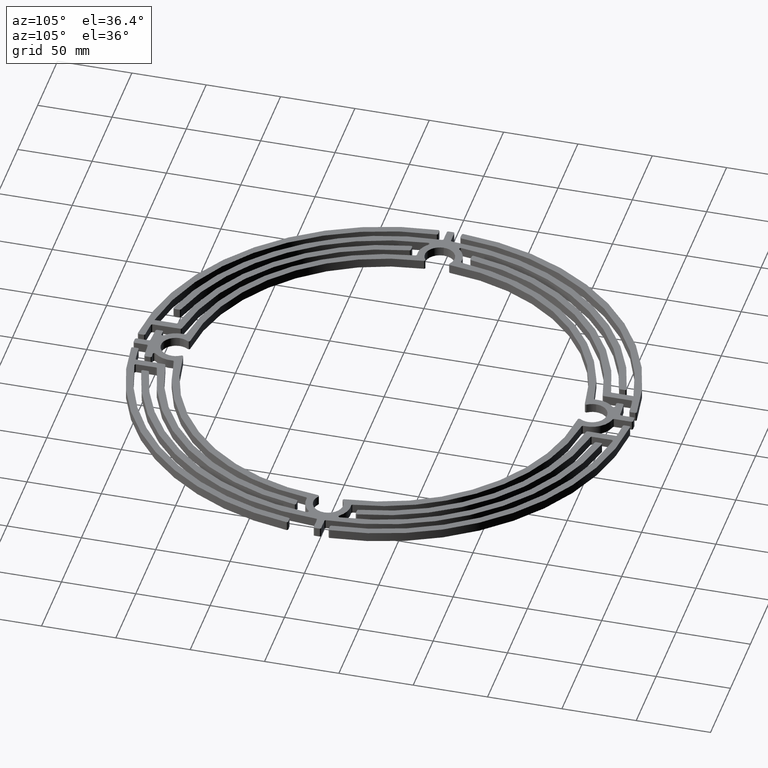
[diagram: clean part render]
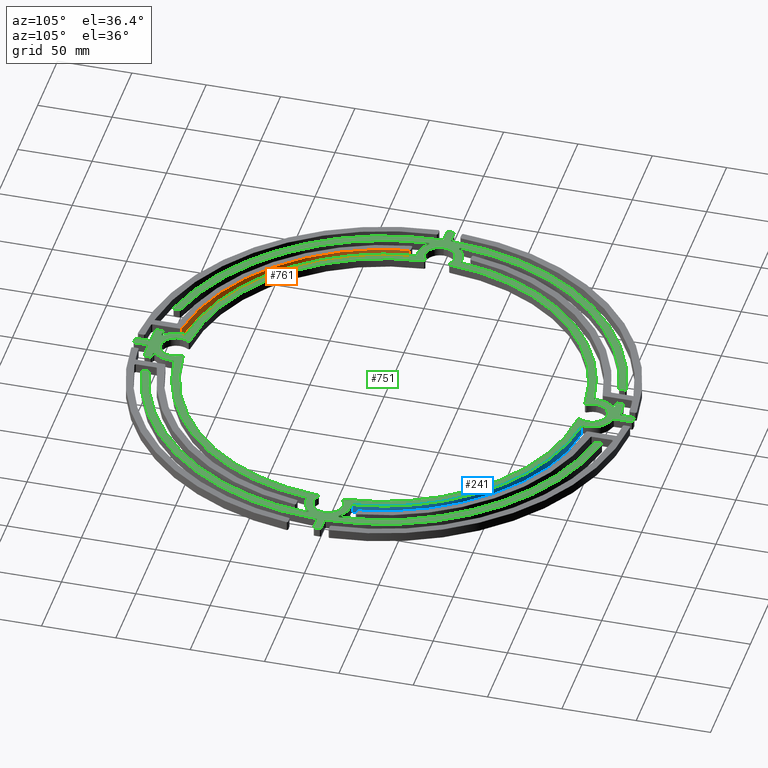
[diagram: same view with three faces highlighted in distinct colors, each labeled with its STEP entity id]
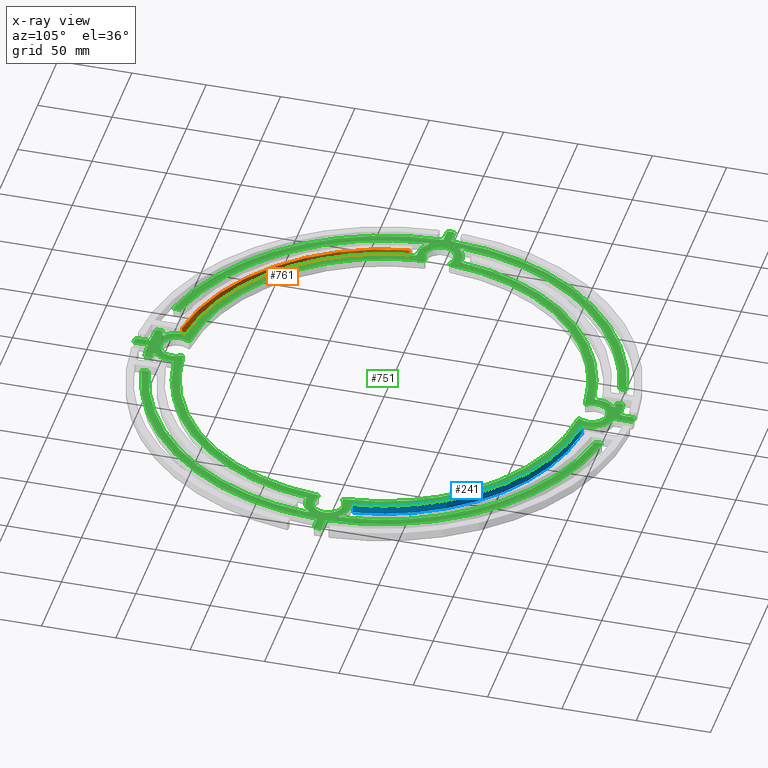
[diagram: x-ray of the same camera — body ghosted, the three highlighted faces saturated]
A machine part, auxiliary view with three faces highlighted in distinct colors.
The next image is the same camera in x-ray (body ghosted, the three faces saturated) — at least one of them is partly hidden behind the body in this view.
Their STEP definitions:

[orange] entity #761 — the highlighted cylindrical surface (partial cylindrical patch) has radius 143 mm, axis along (-0, -0, -1).
#23 = VERTEX_POINT ( 'NONE', #826 ) ;
#71 = VERTEX_POINT ( 'NONE', #874 ) ;
#99 = VERTEX_POINT ( 'NONE', #902 ) ;
#101 = VERTEX_POINT ( 'NONE', #904 ) ;
#496 = EDGE_CURVE ( 'NONE', #71, #101, #4282, .T. ) ;
#497 = EDGE_CURVE ( 'NONE', #71, #99, #4281, .T. ) ;
#498 = EDGE_CURVE ( 'NONE', #99, #23, #4285, .T. ) ;
#499 = EDGE_CURVE ( 'NONE', #23, #101, #4284, .T. ) ;
#761 = ADVANCED_FACE ( 'NONE', ( #4651 ), #4652, .F. ) ;
#826 = CARTESIAN_POINT ( 'NONE',  ( -141.4712116744564700, -20.85416666666667100, 0.0000000000000000000 ) ) ;
#874 = CARTESIAN_POINT ( 'NONE',  ( -20.85416666666667100, -141.4712116744564700, 6.349999999999999600 ) ) ;
#902 = CARTESIAN_POINT ( 'NONE',  ( -20.85416666666667100, -141.4712116744564700, 0.0000000000000000000 ) ) ;
#904 = CARTESIAN_POINT ( 'NONE',  ( -141.4712116744564700, -20.85416666666667100, 6.349999999999999600 ) ) ;
#2021 = CARTESIAN_POINT ( 'NONE',  ( 0.0000000000000000000, 0.0000000000000000000, 6.349999999999999600 ) ) ;
#2022 = DIRECTION ( 'NONE',  ( -0.0000000000000000000, -0.0000000000000000000, -1.000000000000000000 ) ) ;
#2023 = DIRECTION ( 'NONE',  ( 1.000000000000000000, 0.0000000000000000000, 0.0000000000000000000 ) ) ;
#2024 = CARTESIAN_POINT ( 'NONE',  ( -20.85416666666667100, -141.4712116744564700, 6.349999999999999600 ) ) ;
#2025 = DIRECTION ( 'NONE',  ( -0.0000000000000000000, -0.0000000000000000000, -1.000000000000000000 ) ) ;
#2026 = CARTESIAN_POINT ( 'NONE',  ( 0.0000000000000000000, 0.0000000000000000000, 0.0000000000000000000 ) ) ;
#2027 = DIRECTION ( 'NONE',  ( -0.0000000000000000000, -0.0000000000000000000, -1.000000000000000000 ) ) ;
#2028 = DIRECTION ( 'NONE',  ( 1.000000000000000000, 0.0000000000000000000, 0.0000000000000000000 ) ) ;
#2029 = CARTESIAN_POINT ( 'NONE',  ( -141.4712116744564700, -20.85416666666667100, 6.349999999999999600 ) ) ;
#2030 = DIRECTION ( 'NONE',  ( 0.0000000000000000000, 0.0000000000000000000, 1.000000000000000000 ) ) ;
#2485 = EDGE_LOOP ( 'NONE', ( #6913, #6991, #6936, #6935 ) ) ;
#3371 = AXIS2_PLACEMENT_3D ( 'NONE', #2021, #2022, #2023 ) ;
#3372 = AXIS2_PLACEMENT_3D ( 'NONE', #2026, #2027, #2028 ) ;
#4281 = LINE ( 'NONE', #2024, #4283 ) ;
#4282 = CIRCLE ( 'NONE', #3371, 142.9999999999999400 ) ;
#4283 = VECTOR ( 'NONE', #2025, 1000.000000000000000 ) ;
#4284 = LINE ( 'NONE', #2029, #4286 ) ;
#4285 = CIRCLE ( 'NONE', #3372, 142.9999999999999400 ) ;
#4286 = VECTOR ( 'NONE', #2030, 1000.000000000000000 ) ;
#4651 = FACE_OUTER_BOUND ( 'NONE', #2485, .T. ) ;
#4652 = CYLINDRICAL_SURFACE ( 'NONE', #5981, 142.9999999999999400 ) ;
#5205 = CARTESIAN_POINT ( 'NONE',  ( 0.0000000000000000000, 0.0000000000000000000, 6.349999999999999600 ) ) ;
#5206 = DIRECTION ( 'NONE',  ( -0.0000000000000000000, -0.0000000000000000000, -1.000000000000000000 ) ) ;
#5207 = DIRECTION ( 'NONE',  ( -1.000000000000000000, 0.0000000000000000000, 0.0000000000000000000 ) ) ;
#5981 = AXIS2_PLACEMENT_3D ( 'NONE', #5205, #5206, #5207 ) ;
#6913 = ORIENTED_EDGE ( 'NONE', *, *, #496, .F. ) ;
#6935 = ORIENTED_EDGE ( 'NONE', *, *, #499, .T. ) ;
#6936 = ORIENTED_EDGE ( 'NONE', *, *, #498, .T. ) ;
#6991 = ORIENTED_EDGE ( 'NONE', *, *, #497, .T. ) ;

[blue] entity #241 — the highlighted cylindrical surface (partial cylindrical patch) has radius 138 mm, axis along (-0, -0, -1).
#241 = ADVANCED_FACE ( 'NONE', ( #3874 ), #3875, .T. ) ;
#294 = EDGE_CURVE ( 'NONE', #6754, #6832, #3949, .T. ) ;
#295 = EDGE_CURVE ( 'NONE', #6833, #6755, #3951, .T. ) ;
#1153 = CARTESIAN_POINT ( 'NONE',  ( 0.0000000000000000000, 0.0000000000000000000, 6.349999999999999600 ) ) ;
#1154 = DIRECTION ( 'NONE',  ( -0.0000000000000000000, -0.0000000000000000000, -1.000000000000000000 ) ) ;
#1155 = DIRECTION ( 'NONE',  ( -1.000000000000000000, 0.0000000000000000000, 0.0000000000000000000 ) ) ;
#1361 = CARTESIAN_POINT ( 'NONE',  ( 137.0958376156217800, 15.77121772315176800, 6.349999999999999600 ) ) ;
#1363 = DIRECTION ( 'NONE',  ( -0.0000000000000000000, -0.0000000000000000000, -1.000000000000000000 ) ) ;
#1365 = CARTESIAN_POINT ( 'NONE',  ( 15.77121772315189600, 137.0958376156217500, 6.349999999999999600 ) ) ;
#1366 = DIRECTION ( 'NONE',  ( 0.0000000000000000000, 0.0000000000000000000, 1.000000000000000000 ) ) ;
#2980 = EDGE_CURVE ( 'NONE', #6754, #6755, #4715, .T. ) ;
#3174 = EDGE_CURVE ( 'NONE', #6832, #6833, #6440, .T. ) ;
#3255 = AXIS2_PLACEMENT_3D ( 'NONE', #1153, #1154, #1155 ) ;
#3598 = EDGE_LOOP ( 'NONE', ( #7110, #7113, #7111, #7109 ) ) ;
#3874 = FACE_OUTER_BOUND ( 'NONE', #3598, .T. ) ;
#3875 = CYLINDRICAL_SURFACE ( 'NONE', #3255, 137.9999999999999400 ) ;
#3949 = LINE ( 'NONE', #1361, #3950 ) ;
#3950 = VECTOR ( 'NONE', #1363, 1000.000000000000000 ) ;
#3951 = LINE ( 'NONE', #1365, #3952 ) ;
#3952 = VECTOR ( 'NONE', #1366, 1000.000000000000000 ) ;
#4715 = CIRCLE ( 'NONE', #6012, 137.9999999999999400 ) ;
#5352 = CARTESIAN_POINT ( 'NONE',  ( 0.0000000000000000000, 0.0000000000000000000, 6.349999999999999600 ) ) ;
#5353 = DIRECTION ( 'NONE',  ( 0.0000000000000000000, 0.0000000000000000000, 1.000000000000000000 ) ) ;
#5354 = DIRECTION ( 'NONE',  ( 1.000000000000000000, 0.0000000000000000000, 0.0000000000000000000 ) ) ;
#5839 = CARTESIAN_POINT ( 'NONE',  ( 0.0000000000000000000, 0.0000000000000000000, 0.0000000000000000000 ) ) ;
#5840 = DIRECTION ( 'NONE',  ( 0.0000000000000000000, 0.0000000000000000000, 1.000000000000000000 ) ) ;
#5841 = DIRECTION ( 'NONE',  ( 1.000000000000000000, 0.0000000000000000000, 0.0000000000000000000 ) ) ;
#6012 = AXIS2_PLACEMENT_3D ( 'NONE', #5352, #5353, #5354 ) ;
#6111 = AXIS2_PLACEMENT_3D ( 'NONE', #5839, #5840, #5841 ) ;
#6440 = CIRCLE ( 'NONE', #6111, 137.9999999999999400 ) ;
#6547 = CARTESIAN_POINT ( 'NONE',  ( 137.0958376156217800, 15.77121772315176800, 6.349999999999999600 ) ) ;
#6548 = CARTESIAN_POINT ( 'NONE',  ( 15.77121772315189600, 137.0958376156217500, 6.349999999999999600 ) ) ;
#6620 = CARTESIAN_POINT ( 'NONE',  ( 137.0958376156217800, 15.77121772315176800, 0.0000000000000000000 ) ) ;
#6621 = CARTESIAN_POINT ( 'NONE',  ( 15.77121772315189600, 137.0958376156217500, 0.0000000000000000000 ) ) ;
#6754 = VERTEX_POINT ( 'NONE', #6547 ) ;
#6755 = VERTEX_POINT ( 'NONE', #6548 ) ;
#6832 = VERTEX_POINT ( 'NONE', #6620 ) ;
#6833 = VERTEX_POINT ( 'NONE', #6621 ) ;
#7109 = ORIENTED_EDGE ( 'NONE', *, *, #295, .T. ) ;
#7110 = ORIENTED_EDGE ( 'NONE', *, *, #2980, .F. ) ;
#7111 = ORIENTED_EDGE ( 'NONE', *, *, #3174, .T. ) ;
#7113 = ORIENTED_EDGE ( 'NONE', *, *, #294, .T. ) ;

[green] entity #751 — the highlighted planar face has unit normal (0, 0, 1).
#3 = VERTEX_POINT ( 'NONE', #806 ) ;
#4 = VERTEX_POINT ( 'NONE', #807 ) ;
#5 = VERTEX_POINT ( 'NONE', #808 ) ;
#6 = VERTEX_POINT ( 'NONE', #809 ) ;
#7 = VERTEX_POINT ( 'NONE', #810 ) ;
#9 = VERTEX_POINT ( 'NONE', #812 ) ;
#10 = VERTEX_POINT ( 'NONE', #813 ) ;
#11 = VERTEX_POINT ( 'NONE', #814 ) ;
#13 = VERTEX_POINT ( 'NONE', #816 ) ;
#15 = VERTEX_POINT ( 'NONE', #818 ) ;
#17 = VERTEX_POINT ( 'NONE', #820 ) ;
#18 = VERTEX_POINT ( 'NONE', #821 ) ;
#19 = VERTEX_POINT ( 'NONE', #822 ) ;
#24 = VERTEX_POINT ( 'NONE', #827 ) ;
#26 = VERTEX_POINT ( 'NONE', #829 ) ;
#27 = VERTEX_POINT ( 'NONE', #830 ) ;
#30 = VERTEX_POINT ( 'NONE', #833 ) ;
#31 = VERTEX_POINT ( 'NONE', #834 ) ;
#33 = VERTEX_POINT ( 'NONE', #836 ) ;
#34 = VERTEX_POINT ( 'NONE', #837 ) ;
#35 = VERTEX_POINT ( 'NONE', #838 ) ;
#36 = VERTEX_POINT ( 'NONE', #839 ) ;
#40 = VERTEX_POINT ( 'NONE', #843 ) ;
#42 = VERTEX_POINT ( 'NONE', #845 ) ;
#58 = VERTEX_POINT ( 'NONE', #861 ) ;
#59 = VERTEX_POINT ( 'NONE', #862 ) ;
#60 = VERTEX_POINT ( 'NONE', #863 ) ;
#66 = VERTEX_POINT ( 'NONE', #869 ) ;
#72 = VERTEX_POINT ( 'NONE', #875 ) ;
#73 = VERTEX_POINT ( 'NONE', #876 ) ;
#74 = VERTEX_POINT ( 'NONE', #877 ) ;
#81 = VERTEX_POINT ( 'NONE', #884 ) ;
#82 = VERTEX_POINT ( 'NONE', #885 ) ;
#83 = VERTEX_POINT ( 'NONE', #886 ) ;
#84 = VERTEX_POINT ( 'NONE', #887 ) ;
#86 = VERTEX_POINT ( 'NONE', #889 ) ;
#87 = VERTEX_POINT ( 'NONE', #890 ) ;
#89 = VERTEX_POINT ( 'NONE', #892 ) ;
#93 = VERTEX_POINT ( 'NONE', #896 ) ;
#94 = VERTEX_POINT ( 'NONE', #897 ) ;
#109 = VERTEX_POINT ( 'NONE', #912 ) ;
#110 = VERTEX_POINT ( 'NONE', #913 ) ;
#111 = VERTEX_POINT ( 'NONE', #914 ) ;
#114 = VERTEX_POINT ( 'NONE', #917 ) ;
#115 = VERTEX_POINT ( 'NONE', #918 ) ;
#116 = VERTEX_POINT ( 'NONE', #919 ) ;
#117 = VERTEX_POINT ( 'NONE', #920 ) ;
#118 = VERTEX_POINT ( 'NONE', #921 ) ;
#122 = VERTEX_POINT ( 'NONE', #925 ) ;
#127 = VERTEX_POINT ( 'NONE', #930 ) ;
#141 = VERTEX_POINT ( 'NONE', #944 ) ;
#142 = VERTEX_POINT ( 'NONE', #945 ) ;
#157 = VERTEX_POINT ( 'NONE', #960 ) ;
#167 = VERTEX_POINT ( 'NONE', #970 ) ;
#172 = VERTEX_POINT ( 'NONE', #975 ) ;
#176 = VERTEX_POINT ( 'NONE', #979 ) ;
#186 = VERTEX_POINT ( 'NONE', #989 ) ;
#188 = VERTEX_POINT ( 'NONE', #991 ) ;
#192 = VERTEX_POINT ( 'NONE', #995 ) ;
#533 = EDGE_CURVE ( 'NONE', #6865, #117, #4328, .T. ) ;
#534 = EDGE_CURVE ( 'NONE', #6864, #6812, #4331, .T. ) ;
#535 = EDGE_CURVE ( 'NONE', #114, #141, #4332, .T. ) ;
#536 = EDGE_CURVE ( 'NONE', #6824, #114, #4333, .T. ) ;
#537 = EDGE_CURVE ( 'NONE', #3555, #3562, #4334, .T. ) ;
#538 = EDGE_CURVE ( 'NONE', #141, #3555, #4335, .T. ) ;
#539 = EDGE_CURVE ( 'NONE', #116, #6867, #4336, .T. ) ;
#540 = EDGE_CURVE ( 'NONE', #127, #6868, #4337, .T. ) ;
#541 = EDGE_CURVE ( 'NONE', #6822, #6824, #4338, .T. ) ;
#542 = EDGE_CURVE ( 'NONE', #6862, #6822, #4339, .T. ) ;
#543 = EDGE_CURVE ( 'NONE', #4, #6862, #4340, .T. ) ;
#544 = EDGE_CURVE ( 'NONE', #6812, #3563, #4341, .T. ) ;
#545 = EDGE_CURVE ( 'NONE', #117, #6864, #4342, .T. ) ;
#546 = EDGE_CURVE ( 'NONE', #115, #6865, #4343, .T. ) ;
#547 = EDGE_CURVE ( 'NONE', #6867, #115, #4344, .T. ) ;
#548 = EDGE_CURVE ( 'NONE', #3562, #6835, #4345, .T. ) ;
#549 = EDGE_CURVE ( 'NONE', #6781, #3561, #4346, .T. ) ;
#550 = EDGE_CURVE ( 'NONE', #59, #6825, #4347, .T. ) ;
#551 = EDGE_CURVE ( 'NONE', #59, #3561, #4348, .T. ) ;
#552 = EDGE_CURVE ( 'NONE', #6770, #6866, #4349, .T. ) ;
#553 = EDGE_CURVE ( 'NONE', #6778, #6825, #4350, .T. ) ;
#554 = EDGE_CURVE ( 'NONE', #122, #6866, #4351, .T. ) ;
#555 = EDGE_CURVE ( 'NONE', #122, #81, #4352, .T. ) ;
#556 = EDGE_CURVE ( 'NONE', #6780, #6828, #4353, .T. ) ;
#557 = EDGE_CURVE ( 'NONE', #188, #81, #4354, .T. ) ;
#560 = EDGE_CURVE ( 'NONE', #82, #9, #4359, .T. ) ;
#570 = EDGE_CURVE ( 'NONE', #6868, #60, #4370, .T. ) ;
#575 = EDGE_CURVE ( 'NONE', #3556, #176, #4375, .T. ) ;
#578 = EDGE_CURVE ( 'NONE', #6784, #6874, #4379, .T. ) ;
#581 = EDGE_CURVE ( 'NONE', #83, #84, #4383, .T. ) ;
#584 = EDGE_CURVE ( 'NONE', #82, #84, #4386, .T. ) ;
#587 = EDGE_CURVE ( 'NONE', #6874, #127, #4390, .T. ) ;
#588 = EDGE_CURVE ( 'NONE', #60, #116, #4389, .T. ) ;
#595 = EDGE_CURVE ( 'NONE', #83, #87, #4399, .T. ) ;
#610 = EDGE_CURVE ( 'NONE', #66, #87, #4417, .T. ) ;
#618 = EDGE_CURVE ( 'NONE', #66, #167, #4426, .T. ) ;
#640 = EDGE_CURVE ( 'NONE', #15, #6753, #4453, .T. ) ;
#751 = ADVANCED_FACE ( 'NONE', ( #4634, #4635 ), #5171, .T. ) ;
#806 = CARTESIAN_POINT ( 'NONE',  ( -14.99999999999995000, 140.0000000000000300, 6.349999999999999600 ) ) ;
#807 = CARTESIAN_POINT ( 'NONE',  ( 10.33123298546708600, -150.8749999999999400, 6.349999999999999600 ) ) ;
#808 = CARTESIAN_POINT ( 'NONE',  ( 152.5973684210525800, 11.09248173176459000, 6.349999999999999600 ) ) ;
#809 = CARTESIAN_POINT ( 'NONE',  ( 14.89265804020457700, 138.2087053571428300, 6.349999999999999600 ) ) ;
#810 = CARTESIAN_POINT ( 'NONE',  ( -39.99999999999998600, -151.5519712837810600, 6.349999999999999600 ) ) ;
#812 = CARTESIAN_POINT ( 'NONE',  ( 8.947435541653659300, 132.6986940298508000, 6.349999999999999600 ) ) ;
#813 = CARTESIAN_POINT ( 'NONE',  ( -2.499999999999999100, 166.9932633371777200, 6.349999999999999600 ) ) ;
#814 = CARTESIAN_POINT ( 'NONE',  ( -11.09248173176454500, 152.5973684210525800, 6.349999999999999600 ) ) ;
#816 = CARTESIAN_POINT ( 'NONE',  ( -138.2087053571428300, 14.89265804020465600, 6.349999999999999600 ) ) ;
#818 = CARTESIAN_POINT ( 'NONE',  ( 150.8749999999999400, 10.33123298546702700, 6.349999999999999600 ) ) ;
#820 = CARTESIAN_POINT ( 'NONE',  ( 2.500000000000003100, 155.6124949959960000, 6.349999999999999600 ) ) ;
#821 = CARTESIAN_POINT ( 'NONE',  ( 3.281250000000007100, 154.6367140587462400, 6.349999999999999600 ) ) ;
#822 = CARTESIAN_POINT ( 'NONE',  ( 30.79870129870129600, 149.8680753139686300, 6.349999999999999600 ) ) ;
#827 = CARTESIAN_POINT ( 'NONE',  ( -150.8749999999999400, -10.33123298546703200, 6.349999999999999600 ) ) ;
#829 = CARTESIAN_POINT ( 'NONE',  ( -13.90909090909089100, 152.3664569059825200, 6.349999999999999600 ) ) ;
#830 = CARTESIAN_POINT ( 'NONE',  ( -14.88550190955164400, -138.0892857142856900, 6.349999999999999600 ) ) ;
#833 = CARTESIAN_POINT ( 'NONE',  ( -150.8750000000000300, 10.33123298546700600, 6.349999999999999600 ) ) ;
#834 = CARTESIAN_POINT ( 'NONE',  ( -14.99999999999998200, -156.3745503590657800, 6.349999999999999600 ) ) ;
#836 = CARTESIAN_POINT ( 'NONE',  ( 2.500000000000001300, 166.9932633371777200, 6.349999999999999600 ) ) ;
#837 = CARTESIAN_POINT ( 'NONE',  ( -15.77121772315176800, 137.0958376156217800, 6.349999999999999600 ) ) ;
#838 = CARTESIAN_POINT ( 'NONE',  ( -15.00000000000005900, -140.0000000000000300, 6.349999999999999600 ) ) ;
#839 = CARTESIAN_POINT ( 'NONE',  ( -10.33123298546702200, -150.8750000000000300, 6.349999999999999600 ) ) ;
#843 = CARTESIAN_POINT ( 'NONE',  ( -152.5973684210525800, -11.09248173176459700, 6.349999999999999600 ) ) ;
#845 = CARTESIAN_POINT ( 'NONE',  ( -31.19745222929935500, 154.8893765705078400, 6.349999999999999600 ) ) ;
#861 = CARTESIAN_POINT ( 'NONE',  ( -14.99999999999998200, 156.3745503590657200, 6.349999999999999600 ) ) ;
#862 = CARTESIAN_POINT ( 'NONE',  ( -132.6986940298507400, -8.947435541654009200, 6.349999999999999600 ) ) ;
#863 = CARTESIAN_POINT ( 'NONE',  ( 2.500000000000043100, -166.9932633371777800, 6.349999999999999600 ) ) ;
#869 = CARTESIAN_POINT ( 'NONE',  ( 8.947435541653906200, -132.6986940298507700, 6.349999999999999600 ) ) ;
#875 = CARTESIAN_POINT ( 'NONE',  ( -167.9932229978794000, 1.508982035928142700, 6.349999999999999600 ) ) ;
#876 = CARTESIAN_POINT ( 'NONE',  ( -30.79870129870129600, 149.8680753139686300, 6.349999999999999600 ) ) ;
#877 = CARTESIAN_POINT ( 'NONE',  ( -137.0958376156217800, -15.77121772315176800, 6.349999999999999600 ) ) ;
#884 = CARTESIAN_POINT ( 'NONE',  ( -8.195190448268071700, 134.2694805194805100, 6.349999999999999600 ) ) ;
#885 = CARTESIAN_POINT ( 'NONE',  ( 132.6986940298507700, 8.947435541654057200, 6.349999999999999600 ) ) ;
#886 = CARTESIAN_POINT ( 'NONE',  ( 134.2694805194803700, -8.195190448268125000, 6.349999999999999600 ) ) ;
#887 = CARTESIAN_POINT ( 'NONE',  ( 134.2694805194805400, 8.195190448268242300, 6.349999999999999600 ) ) ;
#889 = CARTESIAN_POINT ( 'NONE',  ( -166.9932633371777200, -2.499999999999999100, 6.349999999999999600 ) ) ;
#890 = CARTESIAN_POINT ( 'NONE',  ( 132.6986940298508000, -8.947435541653659300, 6.349999999999999600 ) ) ;
#892 = CARTESIAN_POINT ( 'NONE',  ( -14.99999999999998200, -153.3623161014464800, 6.349999999999999600 ) ) ;
#896 = CARTESIAN_POINT ( 'NONE',  ( -157.9617156259601500, -3.477987421383647200, 6.349999999999999600 ) ) ;
#897 = CARTESIAN_POINT ( 'NONE',  ( -138.2087053571428300, -14.89265804020461900, 6.349999999999999600 ) ) ;
#912 = CARTESIAN_POINT ( 'NONE',  ( -167.9932229978794000, -1.508982035928142700, 6.349999999999999600 ) ) ;
#913 = CARTESIAN_POINT ( 'NONE',  ( 167.9932229978794000, -1.508982035928143600, 6.349999999999999600 ) ) ;
#914 = CARTESIAN_POINT ( 'NONE',  ( 29.99999999999999300, 150.8476052179814500, 6.349999999999999600 ) ) ;
#917 = CARTESIAN_POINT ( 'NONE',  ( 138.2087053571428300, -14.89265804020461600, 6.349999999999999600 ) ) ;
#918 = CARTESIAN_POINT ( 'NONE',  ( 14.08917197452227800, -157.3705666033910400, 6.349999999999999600 ) ) ;
#919 = CARTESIAN_POINT ( 'NONE',  ( 2.500000000000041700, -158.9614733197953200, 6.349999999999999600 ) ) ;
#920 = CARTESIAN_POINT ( 'NONE',  ( 14.99999999999998600, -153.3623161014464800, 6.349999999999999600 ) ) ;
#921 = CARTESIAN_POINT ( 'NONE',  ( -2.499999999999998700, 158.9614733197952600, 6.349999999999999600 ) ) ;
#925 = CARTESIAN_POINT ( 'NONE',  ( -8.947435541653886700, 132.6986940298507400, 6.349999999999999600 ) ) ;
#930 = CARTESIAN_POINT ( 'NONE',  ( -1.508982035928143600, -167.9932229978794600, 6.349999999999999600 ) ) ;
#944 = CARTESIAN_POINT ( 'NONE',  ( 150.8750000000000000, -10.33123298546697600, 6.349999999999999600 ) ) ;
#945 = CARTESIAN_POINT ( 'NONE',  ( -14.88550190955141500, 138.0892857142856900, 6.349999999999999600 ) ) ;
#960 = CARTESIAN_POINT ( 'NONE',  ( -14.89265804020456200, 138.2087053571428300, 6.349999999999999600 ) ) ;
#970 = CARTESIAN_POINT ( 'NONE',  ( 8.014709493094914100, -133.6964285714286100, 6.349999999999999600 ) ) ;
#975 = CARTESIAN_POINT ( 'NONE',  ( -152.5973684210525800, 11.09248173176451500, 6.349999999999999600 ) ) ;
#979 = CARTESIAN_POINT ( 'NONE',  ( 8.195190448268107300, -134.2694805194805700, 6.349999999999999600 ) ) ;
#989 = CARTESIAN_POINT ( 'NONE',  ( -167.9999999999999400, 0.0000000000000000000, 6.349999999999999600 ) ) ;
#991 = CARTESIAN_POINT ( 'NONE',  ( -9.999999999999902300, 140.0000000000000300, 6.349999999999999600 ) ) ;
#995 = CARTESIAN_POINT ( 'NONE',  ( -15.77121772315199000, -137.0958376156217500, 6.349999999999999600 ) ) ;
#1745 = ORIENTED_EDGE ( 'NONE', *, *, #584, .T. ) ;
#1750 = ORIENTED_EDGE ( 'NONE', *, *, #610, .F. ) ;
#1752 = ORIENTED_EDGE ( 'NONE', *, *, #581, .F. ) ;
#1754 = ORIENTED_EDGE ( 'NONE', *, *, #595, .T. ) ;
#1755 = ORIENTED_EDGE ( 'NONE', *, *, #618, .T. ) ;
#1757 = ORIENTED_EDGE ( 'NONE', *, *, #575, .F. ) ;
#1759 = ORIENTED_EDGE ( 'NONE', *, *, #3080, .T. ) ;
#1761 = ORIENTED_EDGE ( 'NONE', *, *, #3035, .F. ) ;
#2121 = CARTESIAN_POINT ( 'NONE',  ( 14.99999999999998600, -152.2629304853942100, 6.349999999999999600 ) ) ;
#2122 = DIRECTION ( 'NONE',  ( -0.0000000000000000000, 1.000000000000000000, -0.0000000000000000000 ) ) ;
#2123 = CARTESIAN_POINT ( 'NONE',  ( 0.0000000000000000000, 0.0000000000000000000, 6.349999999999999600 ) ) ;
#2124 = DIRECTION ( 'NONE',  ( -0.0000000000000000000, -0.0000000000000000000, -1.000000000000000000 ) ) ;
#2125 = DIRECTION ( 'NONE',  ( 1.000000000000000000, 0.0000000000000000000, 0.0000000000000000000 ) ) ;
#2126 = CARTESIAN_POINT ( 'NONE',  ( 140.0000000000000300, 0.0000000000000000000, 6.349999999999999600 ) ) ;
#2127 = DIRECTION ( 'NONE',  ( 0.0000000000000000000, 0.0000000000000000000, 1.000000000000000000 ) ) ;
#2128 = DIRECTION ( 'NONE',  ( 1.000000000000000000, 0.0000000000000000000, 0.0000000000000000000 ) ) ;
#2129 = CARTESIAN_POINT ( 'NONE',  ( 138.0892857142856900, -15.88550190955158700, 6.349999999999999600 ) ) ;
#2130 = DIRECTION ( 'NONE',  ( -0.0000000000000000000, -0.0000000000000000000, -1.000000000000000000 ) ) ;
#2131 = DIRECTION ( 'NONE',  ( 1.000000000000000000, 0.0000000000000000000, 0.0000000000000000000 ) ) ;
#2132 = CARTESIAN_POINT ( 'NONE',  ( 0.0000000000000000000, 0.0000000000000000000, 6.349999999999999600 ) ) ;
#2133 = DIRECTION ( 'NONE',  ( -0.0000000000000000000, -0.0000000000000000000, -1.000000000000000000 ) ) ;
#2134 = DIRECTION ( 'NONE',  ( 1.000000000000000000, 0.0000000000000000000, 0.0000000000000000000 ) ) ;
#2135 = CARTESIAN_POINT ( 'NONE',  ( 151.5999999999999700, -11.01998185116474700, 6.349999999999999600 ) ) ;
#2136 = DIRECTION ( 'NONE',  ( -0.0000000000000000000, -0.0000000000000000000, -1.000000000000000000 ) ) ;
#2137 = DIRECTION ( 'NONE',  ( 1.000000000000000000, 3.295974604355930300E-014, 0.0000000000000000000 ) ) ;
#2138 = CARTESIAN_POINT ( 'NONE',  ( 3.500000000000042200, -158.9614733197953200, 6.349999999999999600 ) ) ;
#2139 = DIRECTION ( 'NONE',  ( -0.0000000000000000000, -0.0000000000000000000, -1.000000000000000000 ) ) ;
#2140 = DIRECTION ( 'NONE',  ( 1.000000000000000000, 0.0000000000000000000, 0.0000000000000000000 ) ) ;
#2141 = CARTESIAN_POINT ( 'NONE',  ( 0.0000000000000000000, 0.0000000000000000000, 6.349999999999999600 ) ) ;
#2142 = DIRECTION ( 'NONE',  ( 0.0000000000000000000, 0.0000000000000000000, 1.000000000000000000 ) ) ;
#2143 = DIRECTION ( 'NONE',  ( 1.000000000000000000, 0.0000000000000000000, 0.0000000000000000000 ) ) ;
#2144 = CARTESIAN_POINT ( 'NONE',  ( 0.0000000000000000000, 0.0000000000000000000, 6.349999999999999600 ) ) ;
#2145 = DIRECTION ( 'NONE',  ( 0.0000000000000000000, 0.0000000000000000000, 1.000000000000000000 ) ) ;
#2146 = DIRECTION ( 'NONE',  ( 1.000000000000000000, 0.0000000000000000000, 0.0000000000000000000 ) ) ;
#2147 = CARTESIAN_POINT ( 'NONE',  ( 15.88550190955141700, -138.0892857142856900, 6.349999999999999600 ) ) ;
#2148 = DIRECTION ( 'NONE',  ( -0.0000000000000000000, -0.0000000000000000000, -1.000000000000000000 ) ) ;
#2149 = DIRECTION ( 'NONE',  ( 1.000000000000000000, 0.0000000000000000000, 0.0000000000000000000 ) ) ;
#2150 = CARTESIAN_POINT ( 'NONE',  ( 0.0000000000000000000, -140.0000000000000300, 6.349999999999999600 ) ) ;
#2151 = DIRECTION ( 'NONE',  ( 0.0000000000000000000, 0.0000000000000000000, 1.000000000000000000 ) ) ;
#2152 = DIRECTION ( 'NONE',  ( 1.000000000000000000, 0.0000000000000000000, 0.0000000000000000000 ) ) ;
#2153 = CARTESIAN_POINT ( 'NONE',  ( 11.01998185116488400, -151.5999999999999700, 6.349999999999999600 ) ) ;
#2154 = DIRECTION ( 'NONE',  ( -0.0000000000000000000, -0.0000000000000000000, -1.000000000000000000 ) ) ;
#2155 = DIRECTION ( 'NONE',  ( 1.000000000000000000, 0.0000000000000000000, 0.0000000000000000000 ) ) ;
#2156 = CARTESIAN_POINT ( 'NONE',  ( 13.99999999999998400, -153.3623161014464800, 6.349999999999999600 ) ) ;
#2157 = DIRECTION ( 'NONE',  ( 0.0000000000000000000, 0.0000000000000000000, 1.000000000000000000 ) ) ;
#2158 = DIRECTION ( 'NONE',  ( 1.000000000000000000, 0.0000000000000000000, 0.0000000000000000000 ) ) ;
#2159 = CARTESIAN_POINT ( 'NONE',  ( 13.99999999999998400, -156.3745503590657800, 6.349999999999999600 ) ) ;
#2160 = DIRECTION ( 'NONE',  ( 0.0000000000000000000, 0.0000000000000000000, 1.000000000000000000 ) ) ;
#2161 = DIRECTION ( 'NONE',  ( 1.000000000000000000, 0.0000000000000000000, 0.0000000000000000000 ) ) ;
#2162 = CARTESIAN_POINT ( 'NONE',  ( 0.0000000000000000000, 0.0000000000000000000, 6.349999999999999600 ) ) ;
#2163 = DIRECTION ( 'NONE',  ( 0.0000000000000000000, 0.0000000000000000000, 1.000000000000000000 ) ) ;
#2164 = DIRECTION ( 'NONE',  ( 1.000000000000000000, 0.0000000000000000000, 0.0000000000000000000 ) ) ;
#2165 = CARTESIAN_POINT ( 'NONE',  ( 31.00000000000000000, -150.8476052179814500, 6.349999999999999600 ) ) ;
#2166 = DIRECTION ( 'NONE',  ( 0.0000000000000000000, 0.0000000000000000000, 1.000000000000000000 ) ) ;
#2167 = DIRECTION ( 'NONE',  ( 1.000000000000000000, 0.0000000000000000000, 0.0000000000000000000 ) ) ;
#2168 = CARTESIAN_POINT ( 'NONE',  ( -9.014709493095240900, -133.6964285714285600, 6.349999999999999600 ) ) ;
#2169 = DIRECTION ( 'NONE',  ( 0.0000000000000000000, 0.0000000000000000000, 1.000000000000000000 ) ) ;
#2170 = DIRECTION ( 'NONE',  ( 1.000000000000000000, 0.0000000000000000000, 0.0000000000000000000 ) ) ;
#2171 = CARTESIAN_POINT ( 'NONE',  ( -133.6964285714285600, -9.014709493095015300, 6.349999999999999600 ) ) ;
#2172 = DIRECTION ( 'NONE',  ( 0.0000000000000000000, 0.0000000000000000000, 1.000000000000000000 ) ) ;
#2173 = DIRECTION ( 'NONE',  ( 1.000000000000000000, 0.0000000000000000000, 0.0000000000000000000 ) ) ;
#2174 = CARTESIAN_POINT ( 'NONE',  ( 0.0000000000000000000, 0.0000000000000000000, 6.349999999999999600 ) ) ;
#2175 = DIRECTION ( 'NONE',  ( 0.0000000000000000000, 0.0000000000000000000, 1.000000000000000000 ) ) ;
#2176 = DIRECTION ( 'NONE',  ( 1.000000000000000000, 0.0000000000000000000, 0.0000000000000000000 ) ) ;
#2177 = CARTESIAN_POINT ( 'NONE',  ( -133.6964285714285600, 9.014709493095240900, 6.349999999999999600 ) ) ;
#2178 = DIRECTION ( 'NONE',  ( 0.0000000000000000000, 0.0000000000000000000, 1.000000000000000000 ) ) ;
#2179 = DIRECTION ( 'NONE',  ( 1.000000000000000000, 0.0000000000000000000, 0.0000000000000000000 ) ) ;
#2180 = CARTESIAN_POINT ( 'NONE',  ( -140.0000000000000300, 0.0000000000000000000, 6.349999999999999600 ) ) ;
#2181 = DIRECTION ( 'NONE',  ( 0.0000000000000000000, 0.0000000000000000000, 1.000000000000000000 ) ) ;
#2182 = DIRECTION ( 'NONE',  ( 1.000000000000000000, 0.0000000000000000000, 0.0000000000000000000 ) ) ;
#2183 = CARTESIAN_POINT ( 'NONE',  ( 0.0000000000000000000, 0.0000000000000000000, 6.349999999999999600 ) ) ;
#2184 = DIRECTION ( 'NONE',  ( 0.0000000000000000000, 0.0000000000000000000, 1.000000000000000000 ) ) ;
#2185 = DIRECTION ( 'NONE',  ( 1.000000000000000000, 0.0000000000000000000, 0.0000000000000000000 ) ) ;
#2186 = CARTESIAN_POINT ( 'NONE',  ( -9.014709493094892800, 133.6964285714285600, 6.349999999999999600 ) ) ;
#2187 = DIRECTION ( 'NONE',  ( 0.0000000000000000000, 0.0000000000000000000, 1.000000000000000000 ) ) ;
#2188 = DIRECTION ( 'NONE',  ( 1.000000000000000000, 0.0000000000000000000, 0.0000000000000000000 ) ) ;
#2189 = CARTESIAN_POINT ( 'NONE',  ( 9.014709493094663600, 133.6964285714286100, 6.349999999999999600 ) ) ;
#2190 = DIRECTION ( 'NONE',  ( 0.0000000000000000000, 0.0000000000000000000, 1.000000000000000000 ) ) ;
#2191 = DIRECTION ( 'NONE',  ( 1.000000000000000000, 0.0000000000000000000, 0.0000000000000000000 ) ) ;
#2192 = CARTESIAN_POINT ( 'NONE',  ( 0.0000000000000000000, 140.0000000000000300, 6.349999999999999600 ) ) ;
#2193 = DIRECTION ( 'NONE',  ( 0.0000000000000000000, 0.0000000000000000000, 1.000000000000000000 ) ) ;
#2194 = DIRECTION ( 'NONE',  ( 1.000000000000000000, 0.0000000000000000000, 0.0000000000000000000 ) ) ;
#2200 = CARTESIAN_POINT ( 'NONE',  ( 0.0000000000000000000, 0.0000000000000000000, 6.349999999999999600 ) ) ;
#2201 = DIRECTION ( 'NONE',  ( 0.0000000000000000000, 0.0000000000000000000, 1.000000000000000000 ) ) ;
#2202 = DIRECTION ( 'NONE',  ( 1.000000000000000000, 0.0000000000000000000, 0.0000000000000000000 ) ) ;
#2228 = CARTESIAN_POINT ( 'NONE',  ( 1.500000000000042900, -166.9932633371777800, 6.349999999999999600 ) ) ;
#2229 = DIRECTION ( 'NONE',  ( 0.0000000000000000000, 0.0000000000000000000, 1.000000000000000000 ) ) ;
#2230 = DIRECTION ( 'NONE',  ( 1.000000000000000000, 0.0000000000000000000, 0.0000000000000000000 ) ) ;
#2243 = CARTESIAN_POINT ( 'NONE',  ( 0.0000000000000000000, -140.0000000000000300, 6.349999999999999600 ) ) ;
#2244 = DIRECTION ( 'NONE',  ( 0.0000000000000000000, 0.0000000000000000000, 1.000000000000000000 ) ) ;
#2245 = DIRECTION ( 'NONE',  ( 1.000000000000000000, 0.0000000000000000000, 0.0000000000000000000 ) ) ;
#2251 = CARTESIAN_POINT ( 'NONE',  ( -2.500000000000000000, -157.9802202808946600, 6.349999999999999600 ) ) ;
#2252 = DIRECTION ( 'NONE',  ( 0.0000000000000000000, -1.000000000000000000, 0.0000000000000000000 ) ) ;
#2259 = CARTESIAN_POINT ( 'NONE',  ( 140.0000000000000300, 0.0000000000000000000, 6.349999999999999600 ) ) ;
#2260 = DIRECTION ( 'NONE',  ( 0.0000000000000000000, 0.0000000000000000000, 1.000000000000000000 ) ) ;
#2261 = DIRECTION ( 'NONE',  ( 1.000000000000000000, 0.0000000000000000000, 0.0000000000000000000 ) ) ;
#2268 = CARTESIAN_POINT ( 'NONE',  ( 133.6964285714286100, 9.014709493095065100, 6.349999999999999600 ) ) ;
#2269 = DIRECTION ( 'NONE',  ( 0.0000000000000000000, 0.0000000000000000000, 1.000000000000000000 ) ) ;
#2270 = DIRECTION ( 'NONE',  ( 1.000000000000000000, 0.0000000000000000000, 0.0000000000000000000 ) ) ;
#2295 = ORIENTED_EDGE ( 'NONE', *, *, #3125, .T. ) ;
#2296 = ORIENTED_EDGE ( 'NONE', *, *, #3126, .T. ) ;
#2297 = ORIENTED_EDGE ( 'NONE', *, *, #3087, .T. ) ;
#2298 = ORIENTED_EDGE ( 'NONE', *, *, #3127, .T. ) ;
#2299 = ORIENTED_EDGE ( 'NONE', *, *, #3128, .T. ) ;
#2300 = ORIENTED_EDGE ( 'NONE', *, *, #3129, .T. ) ;
#2301 = ORIENTED_EDGE ( 'NONE', *, *, #3131, .T. ) ;
#2302 = ORIENTED_EDGE ( 'NONE', *, *, #3132, .T. ) ;
#2303 = ORIENTED_EDGE ( 'NONE', *, *, #3133, .T. ) ;
#2304 = ORIENTED_EDGE ( 'NONE', *, *, #3095, .T. ) ;
#2305 = ORIENTED_EDGE ( 'NONE', *, *, #3130, .T. ) ;
#2306 = ORIENTED_EDGE ( 'NONE', *, *, #3020, .T. ) ;
#2307 = ORIENTED_EDGE ( 'NONE', *, *, #2973, .T. ) ;
#2308 = ORIENTED_EDGE ( 'NONE', *, *, #3116, .T. ) ;
#2309 = ORIENTED_EDGE ( 'NONE', *, *, #3090, .T. ) ;
#2310 = ORIENTED_EDGE ( 'NONE', *, *, #3004, .T. ) ;
#2311 = ORIENTED_EDGE ( 'NONE', *, *, #3017, .T. ) ;
#2312 = ORIENTED_EDGE ( 'NONE', *, *, #3003, .T. ) ;
#2313 = ORIENTED_EDGE ( 'NONE', *, *, #2962, .T. ) ;
#2314 = ORIENTED_EDGE ( 'NONE', *, *, #2992, .T. ) ;
#2315 = ORIENTED_EDGE ( 'NONE', *, *, #2995, .T. ) ;
#2316 = ORIENTED_EDGE ( 'NONE', *, *, #2997, .T. ) ;
#2317 = ORIENTED_EDGE ( 'NONE', *, *, #2998, .T. ) ;
#2318 = ORIENTED_EDGE ( 'NONE', *, *, #2996, .T. ) ;
#2319 = ORIENTED_EDGE ( 'NONE', *, *, #2999, .T. ) ;
#2320 = ORIENTED_EDGE ( 'NONE', *, *, #3088, .T. ) ;
#2321 = ORIENTED_EDGE ( 'NONE', *, *, #3000, .T. ) ;
#2322 = ORIENTED_EDGE ( 'NONE', *, *, #578, .T. ) ;
#2323 = ORIENTED_EDGE ( 'NONE', *, *, #587, .T. ) ;
#2324 = ORIENTED_EDGE ( 'NONE', *, *, #540, .T. ) ;
#2325 = ORIENTED_EDGE ( 'NONE', *, *, #570, .T. ) ;
#2326 = ORIENTED_EDGE ( 'NONE', *, *, #588, .T. ) ;
#2327 = ORIENTED_EDGE ( 'NONE', *, *, #539, .T. ) ;
#2328 = ORIENTED_EDGE ( 'NONE', *, *, #547, .T. ) ;
#2329 = ORIENTED_EDGE ( 'NONE', *, *, #546, .T. ) ;
#2330 = ORIENTED_EDGE ( 'NONE', *, *, #533, .T. ) ;
#2331 = ORIENTED_EDGE ( 'NONE', *, *, #545, .T. ) ;
#2332 = ORIENTED_EDGE ( 'NONE', *, *, #534, .T. ) ;
#2333 = ORIENTED_EDGE ( 'NONE', *, *, #544, .T. ) ;
#2334 = ORIENTED_EDGE ( 'NONE', *, *, #3015, .T. ) ;
#2335 = ORIENTED_EDGE ( 'NONE', *, *, #543, .T. ) ;
#2336 = ORIENTED_EDGE ( 'NONE', *, *, #542, .T. ) ;
#2337 = ORIENTED_EDGE ( 'NONE', *, *, #541, .T. ) ;
#2338 = ORIENTED_EDGE ( 'NONE', *, *, #536, .T. ) ;
#2339 = ORIENTED_EDGE ( 'NONE', *, *, #535, .T. ) ;
#2340 = ORIENTED_EDGE ( 'NONE', *, *, #538, .T. ) ;
#2341 = ORIENTED_EDGE ( 'NONE', *, *, #537, .T. ) ;
#2342 = ORIENTED_EDGE ( 'NONE', *, *, #548, .T. ) ;
#2343 = ORIENTED_EDGE ( 'NONE', *, *, #3085, .F. ) ;
#2344 = ORIENTED_EDGE ( 'NONE', *, *, #549, .T. ) ;
#2345 = ORIENTED_EDGE ( 'NONE', *, *, #551, .F. ) ;
#2346 = ORIENTED_EDGE ( 'NONE', *, *, #550, .T. ) ;
#2347 = ORIENTED_EDGE ( 'NONE', *, *, #553, .F. ) ;
#2348 = ORIENTED_EDGE ( 'NONE', *, *, #3103, .F. ) ;
#2349 = ORIENTED_EDGE ( 'NONE', *, *, #552, .T. ) ;
#2350 = ORIENTED_EDGE ( 'NONE', *, *, #554, .F. ) ;
#2351 = ORIENTED_EDGE ( 'NONE', *, *, #555, .T. ) ;
#2352 = ORIENTED_EDGE ( 'NONE', *, *, #557, .F. ) ;
#2353 = ORIENTED_EDGE ( 'NONE', *, *, #2983, .F. ) ;
#2354 = ORIENTED_EDGE ( 'NONE', *, *, #3081, .F. ) ;
#2355 = ORIENTED_EDGE ( 'NONE', *, *, #556, .T. ) ;
#2356 = ORIENTED_EDGE ( 'NONE', *, *, #2960, .T. ) ;
#2357 = ORIENTED_EDGE ( 'NONE', *, *, #560, .F. ) ;
#2900 = EDGE_LOOP ( 'NONE', ( #7085, #7089, #7086, #6929, #7034, #6954, #7036, #6982, #6980, #6985, #6895, #6979, #6976, #7039, #7037, #7026, #6892, #7059, #6970, #6900, #6973, #6948, #6949, #6952, #6899, #6950, #6951, #6969, #6937, #6964, #6938, #7010, #6922, #7023, #7011, #7027, #7025, #6998, #6996, #6910, #7000, #6905, #6906, #6897, #6909, #6901, #6911, #6890, #6928, #7091, #2295, #2296, #2297, #2298, #2299, #2300, #2301, #2302, #2303, #2304, #2305, #2306, #2307, #2308, #2309, #2310, #2311, #2312, #2313, #2314, #2315, #2316, #2317, #2318, #2319, #2320, #2321, #2322, #2323, #2324, #2325, #2326, #2327, #2328, #2329, #2330, #2331, #2332, #2333, #2334, #2335, #2336, #2337, #2338, #2339, #2340, #2341, #2342 ) ) ;
#2907 = EDGE_LOOP ( 'NONE', ( #2343, #2344, #2345, #2346, #2347, #2348, #2349, #2350, #2351, #2352, #2353, #2354, #2355, #2356, #2357, #1745, #1752, #1754, #1750, #1755, #1759, #1757, #1761 ) ) ;
#2957 = EDGE_CURVE ( 'NONE', #6797, #6872, #4683, .T. ) ;
#2959 = EDGE_CURVE ( 'NONE', #6762, #42, #4685, .T. ) ;
#2960 = EDGE_CURVE ( 'NONE', #6828, #9, #4687, .T. ) ;
#2962 = EDGE_CURVE ( 'NONE', #6789, #35, #4690, .T. ) ;
#2964 = EDGE_CURVE ( 'NONE', #33, #6756, #4693, .T. ) ;
#2966 = EDGE_CURVE ( 'NONE', #73, #6786, #4695, .T. ) ;
#2967 = EDGE_CURVE ( 'NONE', #6795, #6869, #4697, .T. ) ;
#2969 = EDGE_CURVE ( 'NONE', #6835, #6748, #4699, .T. ) ;
#2973 = EDGE_CURVE ( 'NONE', #6796, #24, #4706, .T. ) ;
#2977 = EDGE_CURVE ( 'NONE', #6751, #10, #4711, .T. ) ;
#2980 = EDGE_CURVE ( 'NONE', #6754, #6755, #4715, .T. ) ;
#2983 = EDGE_CURVE ( 'NONE', #6771, #188, #6155, .T. ) ;
#2984 = EDGE_CURVE ( 'NONE', #6798, #6797, #4718, .T. ) ;
#2985 = EDGE_CURVE ( 'NONE', #3, #157, #6158, .T. ) ;
#2989 = EDGE_CURVE ( 'NONE', #5, #15, #6164, .T. ) ;
#2992 = EDGE_CURVE ( 'NONE', #35, #36, #6167, .T. ) ;
#2993 = EDGE_CURVE ( 'NONE', #6748, #6747, #6168, .T. ) ;
#2995 = EDGE_CURVE ( 'NONE', #36, #6855, #6171, .T. ) ;
#2996 = EDGE_CURVE ( 'NONE', #89, #31, #6170, .T. ) ;
#2997 = EDGE_CURVE ( 'NONE', #6855, #6809, #6173, .T. ) ;
#2998 = EDGE_CURVE ( 'NONE', #6809, #89, #6174, .T. ) ;
#2999 = EDGE_CURVE ( 'NONE', #31, #6820, #6175, .T. ) ;
#3000 = EDGE_CURVE ( 'NONE', #6875, #6784, #6177, .T. ) ;
#3001 = EDGE_CURVE ( 'NONE', #6869, #6758, #6176, .T. ) ;
#3002 = EDGE_CURVE ( 'NONE', #6753, #6754, #6179, .T. ) ;
#3003 = EDGE_CURVE ( 'NONE', #27, #6789, #6180, .T. ) ;
#3004 = EDGE_CURVE ( 'NONE', #74, #192, #6182, .T. ) ;
#3007 = EDGE_CURVE ( 'NONE', #10, #118, #6186, .T. ) ;
#3008 = EDGE_CURVE ( 'NONE', #19, #5, #6188, .T. ) ;
#3009 = EDGE_CURVE ( 'NONE', #6758, #110, #6189, .T. ) ;
#3010 = EDGE_CURVE ( 'NONE', #6752, #6787, #6190, .T. ) ;
#3011 = EDGE_CURVE ( 'NONE', #110, #6749, #6192, .T. ) ;
#3013 = EDGE_CURVE ( 'NONE', #26, #11, #6194, .T. ) ;
#3014 = EDGE_CURVE ( 'NONE', #6749, #6798, #6195, .T. ) ;
#3015 = EDGE_CURVE ( 'NONE', #3563, #4, #6197, .T. ) ;
#3017 = EDGE_CURVE ( 'NONE', #192, #27, #6199, .T. ) ;
#3020 = EDGE_CURVE ( 'NONE', #40, #6796, #6204, .T. ) ;
#3022 = EDGE_CURVE ( 'NONE', #58, #6861, #6206, .T. ) ;
#3024 = EDGE_CURVE ( 'NONE', #6861, #26, #6211, .T. ) ;
#3029 = EDGE_CURVE ( 'NONE', #6760, #3, #6219, .T. ) ;
#3035 = EDGE_CURVE ( 'NONE', #3554, #3556, #6228, .T. ) ;
#3037 = EDGE_CURVE ( 'NONE', #6755, #6, #6230, .T. ) ;
#3041 = EDGE_CURVE ( 'NONE', #6, #18, #6235, .T. ) ;
#3045 = EDGE_CURVE ( 'NONE', #6747, #6795, #6239, .T. ) ;
#3048 = EDGE_CURVE ( 'NONE', #18, #17, #6242, .T. ) ;
#3057 = EDGE_CURVE ( 'NONE', #6803, #172, #6255, .T. ) ;
#3060 = EDGE_CURVE ( 'NONE', #157, #142, #6258, .T. ) ;
#3072 = EDGE_CURVE ( 'NONE', #17, #33, #6275, .T. ) ;
#3076 = EDGE_CURVE ( 'NONE', #6756, #6751, #6284, .T. ) ;
#3080 = EDGE_CURVE ( 'NONE', #167, #176, #6290, .T. ) ;
#3081 = EDGE_CURVE ( 'NONE', #6780, #6771, #6291, .T. ) ;
#3082 = EDGE_CURVE ( 'NONE', #118, #6752, #6292, .T. ) ;
#3083 = EDGE_CURVE ( 'NONE', #6787, #58, #6293, .T. ) ;
#3084 = EDGE_CURVE ( 'NONE', #11, #6760, #6294, .T. ) ;
#3085 = EDGE_CURVE ( 'NONE', #6781, #3554, #6296, .T. ) ;
#3087 = EDGE_CURVE ( 'NONE', #186, #109, #6298, .T. ) ;
#3088 = EDGE_CURVE ( 'NONE', #6820, #6875, #6300, .T. ) ;
#3090 = EDGE_CURVE ( 'NONE', #94, #74, #6303, .T. ) ;
#3093 = EDGE_CURVE ( 'NONE', #142, #34, #6307, .T. ) ;
#3094 = EDGE_CURVE ( 'NONE', #6872, #6850, #6308, .T. ) ;
#3095 = EDGE_CURVE ( 'NONE', #6763, #6799, #6309, .T. ) ;
#3097 = EDGE_CURVE ( 'NONE', #172, #73, #6312, .T. ) ;
#3103 = EDGE_CURVE ( 'NONE', #6770, #6778, #6320, .T. ) ;
#3104 = EDGE_CURVE ( 'NONE', #6850, #6750, #6322, .T. ) ;
#3106 = EDGE_CURVE ( 'NONE', #111, #19, #6325, .T. ) ;
#3107 = EDGE_CURVE ( 'NONE', #6750, #111, #6324, .T. ) ;
#3116 = EDGE_CURVE ( 'NONE', #24, #94, #6339, .T. ) ;
#3117 = EDGE_CURVE ( 'NONE', #30, #6803, #6340, .T. ) ;
#3118 = EDGE_CURVE ( 'NONE', #6788, #6791, #6341, .T. ) ;
#3119 = EDGE_CURVE ( 'NONE', #13, #30, #6342, .T. ) ;
#3120 = EDGE_CURVE ( 'NONE', #34, #6840, #6344, .T. ) ;
#3121 = EDGE_CURVE ( 'NONE', #6786, #6762, #6343, .T. ) ;
#3122 = EDGE_CURVE ( 'NONE', #42, #6788, #6346, .T. ) ;
#3123 = EDGE_CURVE ( 'NONE', #6840, #13, #6348, .T. ) ;
#3124 = EDGE_CURVE ( 'NONE', #6791, #6794, #6347, .T. ) ;
#3125 = EDGE_CURVE ( 'NONE', #6794, #72, #6350, .T. ) ;
#3126 = EDGE_CURVE ( 'NONE', #72, #186, #6351, .T. ) ;
#3127 = EDGE_CURVE ( 'NONE', #109, #86, #6353, .T. ) ;
#3128 = EDGE_CURVE ( 'NONE', #86, #6842, #6352, .T. ) ;
#3129 = EDGE_CURVE ( 'NONE', #6842, #93, #6355, .T. ) ;
#3130 = EDGE_CURVE ( 'NONE', #6799, #40, #6356, .T. ) ;
#3131 = EDGE_CURVE ( 'NONE', #93, #6858, #6357, .T. ) ;
#3132 = EDGE_CURVE ( 'NONE', #6858, #7, #6359, .T. ) ;
#3133 = EDGE_CURVE ( 'NONE', #7, #6763, #6358, .T. ) ;
#3397 = AXIS2_PLACEMENT_3D ( 'NONE', #2123, #2124, #2125 ) ;
#3398 = AXIS2_PLACEMENT_3D ( 'NONE', #2126, #2127, #2128 ) ;
#3399 = AXIS2_PLACEMENT_3D ( 'NONE', #2129, #2130, #2131 ) ;
#3400 = AXIS2_PLACEMENT_3D ( 'NONE', #2132, #2133, #2134 ) ;
#3401 = AXIS2_PLACEMENT_3D ( 'NONE', #2135, #2136, #2137 ) ;
#3402 = AXIS2_PLACEMENT_3D ( 'NONE', #2138, #2139, #2140 ) ;
#3403 = AXIS2_PLACEMENT_3D ( 'NONE', #2141, #2142, #2143 ) ;
#3404 = AXIS2_PLACEMENT_3D ( 'NONE', #2144, #2145, #2146 ) ;
#3405 = AXIS2_PLACEMENT_3D ( 'NONE', #2147, #2148, #2149 ) ;
#3406 = AXIS2_PLACEMENT_3D ( 'NONE', #2150, #2151, #2152 ) ;
#3407 = AXIS2_PLACEMENT_3D ( 'NONE', #2153, #2154, #2155 ) ;
#3408 = AXIS2_PLACEMENT_3D ( 'NONE', #2156, #2157, #2158 ) ;
#3409 = AXIS2_PLACEMENT_3D ( 'NONE', #2159, #2160, #2161 ) ;
#3410 = AXIS2_PLACEMENT_3D ( 'NONE', #2162, #2163, #2164 ) ;
#3411 = AXIS2_PLACEMENT_3D ( 'NONE', #2165, #2166, #2167 ) ;
#3412 = AXIS2_PLACEMENT_3D ( 'NONE', #2168, #2169, #2170 ) ;
#3413 = AXIS2_PLACEMENT_3D ( 'NONE', #2171, #2172, #2173 ) ;
#3414 = AXIS2_PLACEMENT_3D ( 'NONE', #2174, #2175, #2176 ) ;
#3415 = AXIS2_PLACEMENT_3D ( 'NONE', #2177, #2178, #2179 ) ;
#3416 = AXIS2_PLACEMENT_3D ( 'NONE', #2180, #2181, #2182 ) ;
#3417 = AXIS2_PLACEMENT_3D ( 'NONE', #2183, #2184, #2185 ) ;
#3418 = AXIS2_PLACEMENT_3D ( 'NONE', #2186, #2187, #2188 ) ;
#3419 = AXIS2_PLACEMENT_3D ( 'NONE', #2189, #2190, #2191 ) ;
#3420 = AXIS2_PLACEMENT_3D ( 'NONE', #2192, #2193, #2194 ) ;
#3422 = AXIS2_PLACEMENT_3D ( 'NONE', #2200, #2201, #2202 ) ;
#3430 = AXIS2_PLACEMENT_3D ( 'NONE', #2228, #2229, #2230 ) ;
#3435 = AXIS2_PLACEMENT_3D ( 'NONE', #2243, #2244, #2245 ) ;
#3439 = AXIS2_PLACEMENT_3D ( 'NONE', #2259, #2260, #2261 ) ;
#3442 = AXIS2_PLACEMENT_3D ( 'NONE', #2268, #2269, #2270 ) ;
#3445 = AXIS2_PLACEMENT_3D ( 'NONE', #4722, #4723, #4724 ) ;
#3451 = AXIS2_PLACEMENT_3D ( 'NONE', #4744, #4745, #4746 ) ;
#3463 = AXIS2_PLACEMENT_3D ( 'NONE', #4786, #4787, #4788 ) ;
#3470 = AXIS2_PLACEMENT_3D ( 'NONE', #4809, #4810, #4811 ) ;
#3487 = AXIS2_PLACEMENT_3D ( 'NONE', #4870, #4871, #4872 ) ;
#3554 = VERTEX_POINT ( 'NONE', #6530 ) ;
#3555 = VERTEX_POINT ( 'NONE', #6531 ) ;
#3556 = VERTEX_POINT ( 'NONE', #6532 ) ;
#3561 = VERTEX_POINT ( 'NONE', #6537 ) ;
#3562 = VERTEX_POINT ( 'NONE', #6538 ) ;
#3563 = VERTEX_POINT ( 'NONE', #6539 ) ;
#4328 = LINE ( 'NONE', #2121, #4330 ) ;
#4330 = VECTOR ( 'NONE', #2122, 1000.000000000000000 ) ;
#4331 = CIRCLE ( 'NONE', #3397, 152.9999999999999700 ) ;
#4332 = CIRCLE ( 'NONE', #3398, 15.00000000000001400 ) ;
#4333 = CIRCLE ( 'NONE', #3399, 1.000000000000000900 ) ;
#4334 = CIRCLE ( 'NONE', #3400, 152.9999999999999700 ) ;
#4335 = CIRCLE ( 'NONE', #3401, 1.000000000000000900 ) ;
#4336 = CIRCLE ( 'NONE', #3402, 1.000000000000000000 ) ;
#4337 = CIRCLE ( 'NONE', #3403, 168.0000000000000000 ) ;
#4338 = CIRCLE ( 'NONE', #3404, 137.9999999999999400 ) ;
#4339 = CIRCLE ( 'NONE', #3405, 1.000000000000000900 ) ;
#4340 = CIRCLE ( 'NONE', #3406, 15.00000000000004400 ) ;
#4341 = CIRCLE ( 'NONE', #3407, 1.000000000000000900 ) ;
#4342 = CIRCLE ( 'NONE', #3408, 1.000000000000000900 ) ;
#4343 = CIRCLE ( 'NONE', #3409, 1.000000000000000900 ) ;
#4344 = CIRCLE ( 'NONE', #3410, 158.0000000000000000 ) ;
#4345 = CIRCLE ( 'NONE', #3411, 1.000000000000000900 ) ;
#4346 = CIRCLE ( 'NONE', #3412, 1.000000000000000900 ) ;
#4347 = CIRCLE ( 'NONE', #3413, 1.000000000000000900 ) ;
#4348 = CIRCLE ( 'NONE', #3414, 132.9999999999999700 ) ;
#4349 = CIRCLE ( 'NONE', #3415, 1.000000000000000900 ) ;
#4350 = CIRCLE ( 'NONE', #3416, 10.00000000000000900 ) ;
#4351 = CIRCLE ( 'NONE', #3417, 132.9999999999999700 ) ;
#4352 = CIRCLE ( 'NONE', #3418, 0.9999999999999991100 ) ;
#4353 = CIRCLE ( 'NONE', #3419, 0.9999999999999991100 ) ;
#4354 = CIRCLE ( 'NONE', #3420, 9.999999999999902300 ) ;
#4359 = CIRCLE ( 'NONE', #3422, 133.0000000000000000 ) ;
#4370 = CIRCLE ( 'NONE', #3430, 1.000000000000000200 ) ;
#4375 = CIRCLE ( 'NONE', #3435, 9.999999999999900500 ) ;
#4379 = LINE ( 'NONE', #2251, #4380 ) ;
#4380 = VECTOR ( 'NONE', #2252, 1000.000000000000000 ) ;
#4383 = CIRCLE ( 'NONE', #3439, 10.00000000000003700 ) ;
#4386 = CIRCLE ( 'NONE', #3442, 1.000000000000000900 ) ;
#4389 = LINE ( 'NONE', #4725, #4391 ) ;
#4390 = CIRCLE ( 'NONE', #3445, 1.000000000000000000 ) ;
#4391 = VECTOR ( 'NONE', #4726, 1000.000000000000000 ) ;
#4399 = CIRCLE ( 'NONE', #3451, 1.000000000000000900 ) ;
#4417 = CIRCLE ( 'NONE', #3463, 133.0000000000000000 ) ;
#4426 = CIRCLE ( 'NONE', #3470, 0.9999999999999991100 ) ;
#4453 = CIRCLE ( 'NONE', #3487, 15.00000000000001400 ) ;
#4634 = FACE_OUTER_BOUND ( 'NONE', #2900, .T. ) ;
#4635 = FACE_BOUND ( 'NONE', #2907, .T. ) ;
#4683 = CIRCLE ( 'NONE', #5999, 1.000000000000000900 ) ;
#4685 = CIRCLE ( 'NONE', #6000, 1.000000000000000900 ) ;
#4687 = CIRCLE ( 'NONE', #6001, 0.9999999999999991100 ) ;
#4690 = CIRCLE ( 'NONE', #6002, 15.00000000000005900 ) ;
#4693 = CIRCLE ( 'NONE', #6003, 0.9999999999999997800 ) ;
#4695 = CIRCLE ( 'NONE', #6004, 1.000000000000000900 ) ;
#4697 = CIRCLE ( 'NONE', #6005, 1.000000000000000900 ) ;
#4699 = LINE ( 'NONE', #5324, #4700 ) ;
#4700 = VECTOR ( 'NONE', #5325, 1000.000000000000000 ) ;
#4706 = CIRCLE ( 'NONE', #6007, 1.000000000000000900 ) ;
#4711 = CIRCLE ( 'NONE', #6011, 1.000000000000000000 ) ;
#4715 = CIRCLE ( 'NONE', #6012, 137.9999999999999400 ) ;
#4718 = LINE ( 'NONE', #5364, #6156 ) ;
#4722 = CARTESIAN_POINT ( 'NONE',  ( -1.500000000000000000, -166.9932633371777800, 6.349999999999999600 ) ) ;
#4723 = DIRECTION ( 'NONE',  ( 0.0000000000000000000, 0.0000000000000000000, 1.000000000000000000 ) ) ;
#4724 = DIRECTION ( 'NONE',  ( 1.000000000000000000, 0.0000000000000000000, 0.0000000000000000000 ) ) ;
#4725 = CARTESIAN_POINT ( 'NONE',  ( 2.500000000000041700, -157.9802202808946600, 6.349999999999999600 ) ) ;
#4726 = DIRECTION ( 'NONE',  ( -1.300889427416378600E-016, 1.000000000000000000, -0.0000000000000000000 ) ) ;
#4744 = CARTESIAN_POINT ( 'NONE',  ( 133.6964285714286100, -9.014709493094663600, 6.349999999999999600 ) ) ;
#4745 = DIRECTION ( 'NONE',  ( 0.0000000000000000000, 0.0000000000000000000, 1.000000000000000000 ) ) ;
#4746 = DIRECTION ( 'NONE',  ( 1.000000000000000000, 0.0000000000000000000, 0.0000000000000000000 ) ) ;
#4786 = CARTESIAN_POINT ( 'NONE',  ( 0.0000000000000000000, 0.0000000000000000000, 6.349999999999999600 ) ) ;
#4787 = DIRECTION ( 'NONE',  ( 0.0000000000000000000, 0.0000000000000000000, 1.000000000000000000 ) ) ;
#4788 = DIRECTION ( 'NONE',  ( 1.000000000000000000, 0.0000000000000000000, 0.0000000000000000000 ) ) ;
#4809 = CARTESIAN_POINT ( 'NONE',  ( 9.014709493094912300, -133.6964285714286100, 6.349999999999999600 ) ) ;
#4810 = DIRECTION ( 'NONE',  ( 0.0000000000000000000, 0.0000000000000000000, 1.000000000000000000 ) ) ;
#4811 = DIRECTION ( 'NONE',  ( 1.000000000000000000, 0.0000000000000000000, 0.0000000000000000000 ) ) ;
#4870 = CARTESIAN_POINT ( 'NONE',  ( 140.0000000000000300, 0.0000000000000000000, 6.349999999999999600 ) ) ;
#4871 = DIRECTION ( 'NONE',  ( 0.0000000000000000000, 0.0000000000000000000, 1.000000000000000000 ) ) ;
#4872 = DIRECTION ( 'NONE',  ( 1.000000000000000000, 0.0000000000000000000, 0.0000000000000000000 ) ) ;
#5171 = PLANE ( 'NONE',  #5971 ) ;
#5172 = CARTESIAN_POINT ( 'NONE',  ( -140.0000000000000300, 0.0000000000000000000, 6.349999999999999600 ) ) ;
#5173 = DIRECTION ( 'NONE',  ( 0.0000000000000000000, 0.0000000000000000000, 1.000000000000000000 ) ) ;
#5174 = DIRECTION ( 'NONE',  ( 1.000000000000000000, 0.0000000000000000000, -0.0000000000000000000 ) ) ;
#5293 = CARTESIAN_POINT ( 'NONE',  ( 158.9614733197952900, 3.500000000000000000, 6.349999999999999600 ) ) ;
#5294 = DIRECTION ( 'NONE',  ( -0.0000000000000000000, -0.0000000000000000000, -1.000000000000000000 ) ) ;
#5295 = DIRECTION ( 'NONE',  ( 1.000000000000000000, -8.673617379884027600E-016, 0.0000000000000000000 ) ) ;
#5298 = CARTESIAN_POINT ( 'NONE',  ( -30.99999999999999300, 153.9090640605678900, 6.349999999999999600 ) ) ;
#5299 = DIRECTION ( 'NONE',  ( 0.0000000000000000000, 0.0000000000000000000, 1.000000000000000000 ) ) ;
#5300 = DIRECTION ( 'NONE',  ( 1.000000000000000000, 0.0000000000000000000, 0.0000000000000000000 ) ) ;
#5301 = CARTESIAN_POINT ( 'NONE',  ( 9.014709493094663600, 133.6964285714286100, 6.349999999999999600 ) ) ;
#5302 = DIRECTION ( 'NONE',  ( 0.0000000000000000000, 0.0000000000000000000, 1.000000000000000000 ) ) ;
#5303 = DIRECTION ( 'NONE',  ( 1.000000000000000000, 0.0000000000000000000, 0.0000000000000000000 ) ) ;
#5306 = CARTESIAN_POINT ( 'NONE',  ( 0.0000000000000000000, -140.0000000000000300, 6.349999999999999600 ) ) ;
#5307 = DIRECTION ( 'NONE',  ( 0.0000000000000000000, 0.0000000000000000000, 1.000000000000000000 ) ) ;
#5308 = DIRECTION ( 'NONE',  ( 1.000000000000000000, 0.0000000000000000000, 0.0000000000000000000 ) ) ;
#5311 = CARTESIAN_POINT ( 'NONE',  ( 1.500000000000001600, 166.9932633371777200, 6.349999999999999600 ) ) ;
#5312 = DIRECTION ( 'NONE',  ( 0.0000000000000000000, 0.0000000000000000000, 1.000000000000000000 ) ) ;
#5313 = DIRECTION ( 'NONE',  ( 1.000000000000000000, 0.0000000000000000000, 0.0000000000000000000 ) ) ;
#5316 = CARTESIAN_POINT ( 'NONE',  ( -30.99999999999999300, 150.8476052179814500, 6.349999999999999600 ) ) ;
#5317 = DIRECTION ( 'NONE',  ( 0.0000000000000000000, 0.0000000000000000000, 1.000000000000000000 ) ) ;
#5318 = DIRECTION ( 'NONE',  ( 1.000000000000000000, 0.0000000000000000000, 0.0000000000000000000 ) ) ;
#5319 = CARTESIAN_POINT ( 'NONE',  ( 158.9614733197953200, -3.500000000000000000, 6.349999999999999600 ) ) ;
#5320 = DIRECTION ( 'NONE',  ( -0.0000000000000000000, -0.0000000000000000000, -1.000000000000000000 ) ) ;
#5321 = DIRECTION ( 'NONE',  ( 1.000000000000000000, -1.734723475976805500E-015, 0.0000000000000000000 ) ) ;
#5324 = CARTESIAN_POINT ( 'NONE',  ( 30.00000000000000000, -150.0299970005998200, 6.349999999999999600 ) ) ;
#5325 = DIRECTION ( 'NONE',  ( 0.0000000000000000000, -1.000000000000000000, 0.0000000000000000000 ) ) ;
#5333 = CARTESIAN_POINT ( 'NONE',  ( -151.5999999999999700, -11.01998185116482700, 6.349999999999999600 ) ) ;
#5334 = DIRECTION ( 'NONE',  ( -0.0000000000000000000, -0.0000000000000000000, -1.000000000000000000 ) ) ;
#5335 = DIRECTION ( 'NONE',  ( 1.000000000000000000, -3.469446951953611000E-015, 0.0000000000000000000 ) ) ;
#5345 = CARTESIAN_POINT ( 'NONE',  ( -1.499999999999998900, 166.9932633371777200, 6.349999999999999600 ) ) ;
#5346 = DIRECTION ( 'NONE',  ( 0.0000000000000000000, 0.0000000000000000000, 1.000000000000000000 ) ) ;
#5347 = DIRECTION ( 'NONE',  ( 1.000000000000000000, 0.0000000000000000000, 0.0000000000000000000 ) ) ;
#5352 = CARTESIAN_POINT ( 'NONE',  ( 0.0000000000000000000, 0.0000000000000000000, 6.349999999999999600 ) ) ;
#5353 = DIRECTION ( 'NONE',  ( 0.0000000000000000000, 0.0000000000000000000, 1.000000000000000000 ) ) ;
#5354 = DIRECTION ( 'NONE',  ( 1.000000000000000000, 0.0000000000000000000, 0.0000000000000000000 ) ) ;
#5361 = CARTESIAN_POINT ( 'NONE',  ( 0.0000000000000000000, 140.0000000000000300, 6.349999999999999600 ) ) ;
#5362 = DIRECTION ( 'NONE',  ( 0.0000000000000000000, 0.0000000000000000000, 1.000000000000000000 ) ) ;
#5363 = DIRECTION ( 'NONE',  ( 1.000000000000000000, 0.0000000000000000000, 0.0000000000000000000 ) ) ;
#5364 = CARTESIAN_POINT ( 'NONE',  ( 157.9802202808946600, 2.500000000000000000, 6.349999999999999600 ) ) ;
#5365 = DIRECTION ( 'NONE',  ( -1.000000000000000000, -0.0000000000000000000, -0.0000000000000000000 ) ) ;
#5366 = CARTESIAN_POINT ( 'NONE',  ( 0.0000000000000000000, 140.0000000000000300, 6.349999999999999600 ) ) ;
#5367 = DIRECTION ( 'NONE',  ( 0.0000000000000000000, 0.0000000000000000000, 1.000000000000000000 ) ) ;
#5368 = DIRECTION ( 'NONE',  ( 1.000000000000000000, 0.0000000000000000000, 0.0000000000000000000 ) ) ;
#5376 = CARTESIAN_POINT ( 'NONE',  ( 151.5999999999999700, 11.01998185116482000, 6.349999999999999600 ) ) ;
#5377 = DIRECTION ( 'NONE',  ( -0.0000000000000000000, -0.0000000000000000000, -1.000000000000000000 ) ) ;
#5378 = DIRECTION ( 'NONE',  ( 1.000000000000000000, -5.204170427930416600E-015, 0.0000000000000000000 ) ) ;
#5384 = CARTESIAN_POINT ( 'NONE',  ( 0.0000000000000000000, -140.0000000000000300, 6.349999999999999600 ) ) ;
#5385 = DIRECTION ( 'NONE',  ( 0.0000000000000000000, 0.0000000000000000000, 1.000000000000000000 ) ) ;
#5386 = DIRECTION ( 'NONE',  ( 1.000000000000000000, 0.0000000000000000000, 0.0000000000000000000 ) ) ;
#5387 = CARTESIAN_POINT ( 'NONE',  ( 31.00000000000000000, -153.9090640605679100, 6.349999999999999600 ) ) ;
#5388 = DIRECTION ( 'NONE',  ( 0.0000000000000000000, 0.0000000000000000000, 1.000000000000000000 ) ) ;
#5389 = DIRECTION ( 'NONE',  ( 1.000000000000000000, 0.0000000000000000000, 0.0000000000000000000 ) ) ;
#5393 = CARTESIAN_POINT ( 'NONE',  ( -11.01998185116474700, -151.5999999999999700, 6.349999999999999600 ) ) ;
#5394 = DIRECTION ( 'NONE',  ( -0.0000000000000000000, -0.0000000000000000000, -1.000000000000000000 ) ) ;
#5395 = DIRECTION ( 'NONE',  ( 1.000000000000000000, -2.775557561562888800E-014, 0.0000000000000000000 ) ) ;
#5396 = CARTESIAN_POINT ( 'NONE',  ( -14.99999999999998200, -152.2629304853942100, 6.349999999999999600 ) ) ;
#5397 = DIRECTION ( 'NONE',  ( 0.0000000000000000000, -1.000000000000000000, 0.0000000000000000000 ) ) ;
#5398 = CARTESIAN_POINT ( 'NONE',  ( 0.0000000000000000000, 0.0000000000000000000, 6.349999999999999600 ) ) ;
#5399 = DIRECTION ( 'NONE',  ( -0.0000000000000000000, -0.0000000000000000000, -1.000000000000000000 ) ) ;
#5400 = DIRECTION ( 'NONE',  ( 1.000000000000000000, 0.0000000000000000000, 0.0000000000000000000 ) ) ;
#5401 = CARTESIAN_POINT ( 'NONE',  ( -13.99999999999998000, -153.3623161014464800, 6.349999999999999600 ) ) ;
#5402 = DIRECTION ( 'NONE',  ( 0.0000000000000000000, 0.0000000000000000000, 1.000000000000000000 ) ) ;
#5403 = DIRECTION ( 'NONE',  ( 1.000000000000000000, 0.0000000000000000000, 0.0000000000000000000 ) ) ;
#5404 = CARTESIAN_POINT ( 'NONE',  ( -13.99999999999998000, -156.3745503590657800, 6.349999999999999600 ) ) ;
#5405 = DIRECTION ( 'NONE',  ( 0.0000000000000000000, 0.0000000000000000000, 1.000000000000000000 ) ) ;
#5406 = DIRECTION ( 'NONE',  ( 1.000000000000000000, 0.0000000000000000000, 0.0000000000000000000 ) ) ;
#5407 = CARTESIAN_POINT ( 'NONE',  ( -3.500000000000000000, -158.9614733197953200, 6.349999999999999600 ) ) ;
#5408 = DIRECTION ( 'NONE',  ( -0.0000000000000000000, -0.0000000000000000000, -1.000000000000000000 ) ) ;
#5409 = DIRECTION ( 'NONE',  ( 1.000000000000000000, 0.0000000000000000000, 0.0000000000000000000 ) ) ;
#5410 = CARTESIAN_POINT ( 'NONE',  ( 157.9802202808946600, -2.500000000000000000, 6.349999999999999600 ) ) ;
#5411 = DIRECTION ( 'NONE',  ( 1.000000000000000000, 0.0000000000000000000, 0.0000000000000000000 ) ) ;
#5412 = CARTESIAN_POINT ( 'NONE',  ( 138.0892857142856900, 15.88550190955141700, 6.349999999999999600 ) ) ;
#5413 = DIRECTION ( 'NONE',  ( -0.0000000000000000000, -0.0000000000000000000, -1.000000000000000000 ) ) ;
#5414 = DIRECTION ( 'NONE',  ( 1.000000000000000000, -1.387778780781444400E-014, 0.0000000000000000000 ) ) ;
#5415 = CARTESIAN_POINT ( 'NONE',  ( -15.88550190955164600, -138.0892857142856900, 6.349999999999999600 ) ) ;
#5416 = DIRECTION ( 'NONE',  ( -0.0000000000000000000, -0.0000000000000000000, -1.000000000000000000 ) ) ;
#5417 = DIRECTION ( 'NONE',  ( 1.000000000000000000, 0.0000000000000000000, 0.0000000000000000000 ) ) ;
#5418 = CARTESIAN_POINT ( 'NONE',  ( 0.0000000000000000000, 0.0000000000000000000, 6.349999999999999600 ) ) ;
#5419 = DIRECTION ( 'NONE',  ( 0.0000000000000000000, 0.0000000000000000000, 1.000000000000000000 ) ) ;
#5420 = DIRECTION ( 'NONE',  ( 1.000000000000000000, 0.0000000000000000000, 0.0000000000000000000 ) ) ;
#5425 = CARTESIAN_POINT ( 'NONE',  ( -2.499999999999999100, 167.9813977796350700, 6.349999999999999600 ) ) ;
#5426 = DIRECTION ( 'NONE',  ( 4.336298091387928300E-017, -1.000000000000000000, 0.0000000000000000000 ) ) ;
#5427 = CARTESIAN_POINT ( 'NONE',  ( 0.0000000000000000000, 0.0000000000000000000, 6.349999999999999600 ) ) ;
#5428 = DIRECTION ( 'NONE',  ( -0.0000000000000000000, -0.0000000000000000000, -1.000000000000000000 ) ) ;
#5429 = DIRECTION ( 'NONE',  ( 1.000000000000000000, 0.0000000000000000000, 0.0000000000000000000 ) ) ;
#5430 = CARTESIAN_POINT ( 'NONE',  ( 166.9932633371777200, -1.500000000000000000, 6.349999999999999600 ) ) ;
#5431 = DIRECTION ( 'NONE',  ( 0.0000000000000000000, 0.0000000000000000000, 1.000000000000000000 ) ) ;
#5432 = DIRECTION ( 'NONE',  ( 1.000000000000000000, 0.0000000000000000000, 0.0000000000000000000 ) ) ;
#5433 = CARTESIAN_POINT ( 'NONE',  ( 0.0000000000000000000, 0.0000000000000000000, 6.349999999999999600 ) ) ;
#5434 = DIRECTION ( 'NONE',  ( 0.0000000000000000000, 0.0000000000000000000, 1.000000000000000000 ) ) ;
#5435 = DIRECTION ( 'NONE',  ( 1.000000000000000000, 0.0000000000000000000, 0.0000000000000000000 ) ) ;
#5436 = CARTESIAN_POINT ( 'NONE',  ( 0.0000000000000000000, 0.0000000000000000000, 6.349999999999999600 ) ) ;
#5437 = DIRECTION ( 'NONE',  ( 0.0000000000000000000, 0.0000000000000000000, 1.000000000000000000 ) ) ;
#5438 = DIRECTION ( 'NONE',  ( 1.000000000000000000, 0.0000000000000000000, 0.0000000000000000000 ) ) ;
#5441 = CARTESIAN_POINT ( 'NONE',  ( 0.0000000000000000000, 0.0000000000000000000, 6.349999999999999600 ) ) ;
#5442 = DIRECTION ( 'NONE',  ( -0.0000000000000000000, -0.0000000000000000000, -1.000000000000000000 ) ) ;
#5443 = DIRECTION ( 'NONE',  ( 1.000000000000000000, 0.0000000000000000000, 0.0000000000000000000 ) ) ;
#5444 = CARTESIAN_POINT ( 'NONE',  ( 166.9932633371777200, 1.500000000000000000, 6.349999999999999600 ) ) ;
#5445 = DIRECTION ( 'NONE',  ( 0.0000000000000000000, 0.0000000000000000000, 1.000000000000000000 ) ) ;
#5446 = DIRECTION ( 'NONE',  ( 1.000000000000000000, 0.0000000000000000000, 0.0000000000000000000 ) ) ;
#5447 = CARTESIAN_POINT ( 'NONE',  ( 11.01998185116488400, -151.5999999999999700, 6.349999999999999600 ) ) ;
#5448 = DIRECTION ( 'NONE',  ( -0.0000000000000000000, -0.0000000000000000000, -1.000000000000000000 ) ) ;
#5449 = DIRECTION ( 'NONE',  ( 1.000000000000000000, -2.775557561562888800E-014, 0.0000000000000000000 ) ) ;
#5452 = CARTESIAN_POINT ( 'NONE',  ( -15.88550190955164600, -138.0892857142856900, 6.349999999999999600 ) ) ;
#5453 = DIRECTION ( 'NONE',  ( -0.0000000000000000000, -0.0000000000000000000, -1.000000000000000000 ) ) ;
#5454 = DIRECTION ( 'NONE',  ( 1.000000000000000000, 0.0000000000000000000, 0.0000000000000000000 ) ) ;
#5460 = CARTESIAN_POINT ( 'NONE',  ( -151.5999999999999700, -11.01998185116482700, 6.349999999999999600 ) ) ;
#5461 = DIRECTION ( 'NONE',  ( -0.0000000000000000000, -0.0000000000000000000, -1.000000000000000000 ) ) ;
#5462 = DIRECTION ( 'NONE',  ( 1.000000000000000000, 0.0000000000000000000, 0.0000000000000000000 ) ) ;
#5465 = CARTESIAN_POINT ( 'NONE',  ( -14.99999999999998200, 157.2863630452430100, 6.349999999999999600 ) ) ;
#5466 = DIRECTION ( 'NONE',  ( 0.0000000000000000000, -1.000000000000000000, 0.0000000000000000000 ) ) ;
#5469 = CARTESIAN_POINT ( 'NONE',  ( -13.99999999999998000, 153.3623161014464500, 6.349999999999999600 ) ) ;
#5470 = DIRECTION ( 'NONE',  ( 0.0000000000000000000, 0.0000000000000000000, 1.000000000000000000 ) ) ;
#5471 = DIRECTION ( 'NONE',  ( 1.000000000000000000, 0.0000000000000000000, 0.0000000000000000000 ) ) ;
#5481 = CARTESIAN_POINT ( 'NONE',  ( 0.0000000000000000000, 140.0000000000000300, 6.349999999999999600 ) ) ;
#5482 = DIRECTION ( 'NONE',  ( 0.0000000000000000000, 0.0000000000000000000, 1.000000000000000000 ) ) ;
#5483 = DIRECTION ( 'NONE',  ( 1.000000000000000000, 0.0000000000000000000, 0.0000000000000000000 ) ) ;
#5496 = CARTESIAN_POINT ( 'NONE',  ( 0.0000000000000000000, -140.0000000000000300, 6.349999999999999600 ) ) ;
#5497 = DIRECTION ( 'NONE',  ( 0.0000000000000000000, 0.0000000000000000000, 1.000000000000000000 ) ) ;
#5498 = DIRECTION ( 'NONE',  ( 1.000000000000000000, 0.0000000000000000000, 0.0000000000000000000 ) ) ;
#5501 = CARTESIAN_POINT ( 'NONE',  ( 15.88550190955155200, 138.0892857142856900, 6.349999999999999600 ) ) ;
#5502 = DIRECTION ( 'NONE',  ( -0.0000000000000000000, -0.0000000000000000000, -1.000000000000000000 ) ) ;
#5503 = DIRECTION ( 'NONE',  ( 1.000000000000000000, 0.0000000000000000000, 0.0000000000000000000 ) ) ;
#5512 = CARTESIAN_POINT ( 'NONE',  ( 0.0000000000000000000, 140.0000000000000300, 6.349999999999999600 ) ) ;
#5513 = DIRECTION ( 'NONE',  ( 0.0000000000000000000, 0.0000000000000000000, 1.000000000000000000 ) ) ;
#5514 = DIRECTION ( 'NONE',  ( 1.000000000000000000, 0.0000000000000000000, 0.0000000000000000000 ) ) ;
#5524 = CARTESIAN_POINT ( 'NONE',  ( 0.0000000000000000000, 0.0000000000000000000, 6.349999999999999600 ) ) ;
#5525 = DIRECTION ( 'NONE',  ( 0.0000000000000000000, 0.0000000000000000000, 1.000000000000000000 ) ) ;
#5526 = DIRECTION ( 'NONE',  ( 1.000000000000000000, 0.0000000000000000000, 0.0000000000000000000 ) ) ;
#5533 = CARTESIAN_POINT ( 'NONE',  ( 3.500000000000002700, 155.6124949959960000, 6.349999999999999600 ) ) ;
#5534 = DIRECTION ( 'NONE',  ( -0.0000000000000000000, -0.0000000000000000000, -1.000000000000000000 ) ) ;
#5535 = DIRECTION ( 'NONE',  ( 1.000000000000000000, 0.0000000000000000000, 0.0000000000000000000 ) ) ;
#5557 = CARTESIAN_POINT ( 'NONE',  ( -151.5999999999999700, 11.01998185116474700, 6.349999999999999600 ) ) ;
#5558 = DIRECTION ( 'NONE',  ( -0.0000000000000000000, -0.0000000000000000000, -1.000000000000000000 ) ) ;
#5559 = DIRECTION ( 'NONE',  ( 1.000000000000000000, 0.0000000000000000000, 0.0000000000000000000 ) ) ;
#5565 = CARTESIAN_POINT ( 'NONE',  ( -15.88550190955141700, 138.0892857142856900, 6.349999999999999600 ) ) ;
#5566 = DIRECTION ( 'NONE',  ( -0.0000000000000000000, -0.0000000000000000000, -1.000000000000000000 ) ) ;
#5567 = DIRECTION ( 'NONE',  ( 1.000000000000000000, -6.938893903907222300E-013, 0.0000000000000000000 ) ) ;
#5595 = CARTESIAN_POINT ( 'NONE',  ( 2.500000000000001300, 167.9813977796350700, 6.349999999999999600 ) ) ;
#5596 = DIRECTION ( 'NONE',  ( -1.315061326231946300E-016, 1.000000000000000000, -0.0000000000000000000 ) ) ;
#5603 = CARTESIAN_POINT ( 'NONE',  ( 0.0000000000000000000, 0.0000000000000000000, 6.349999999999999600 ) ) ;
#5604 = DIRECTION ( 'NONE',  ( 0.0000000000000000000, 0.0000000000000000000, 1.000000000000000000 ) ) ;
#5605 = DIRECTION ( 'NONE',  ( 1.000000000000000000, 0.0000000000000000000, 0.0000000000000000000 ) ) ;
#5613 = CARTESIAN_POINT ( 'NONE',  ( 9.014709493094912300, -133.6964285714286100, 6.349999999999999600 ) ) ;
#5614 = DIRECTION ( 'NONE',  ( 0.0000000000000000000, 0.0000000000000000000, 1.000000000000000000 ) ) ;
#5615 = DIRECTION ( 'NONE',  ( 1.000000000000000000, 0.0000000000000000000, 0.0000000000000000000 ) ) ;
#5616 = CARTESIAN_POINT ( 'NONE',  ( 0.0000000000000000000, 140.0000000000000300, 6.349999999999999600 ) ) ;
#5617 = DIRECTION ( 'NONE',  ( 0.0000000000000000000, 0.0000000000000000000, 1.000000000000000000 ) ) ;
#5618 = DIRECTION ( 'NONE',  ( 1.000000000000000000, 0.0000000000000000000, 0.0000000000000000000 ) ) ;
#5619 = CARTESIAN_POINT ( 'NONE',  ( -3.499999999999998700, 158.9614733197952600, 6.349999999999999600 ) ) ;
#5620 = DIRECTION ( 'NONE',  ( -0.0000000000000000000, -0.0000000000000000000, -1.000000000000000000 ) ) ;
#5621 = DIRECTION ( 'NONE',  ( 1.000000000000000000, 0.0000000000000000000, 0.0000000000000000000 ) ) ;
#5622 = CARTESIAN_POINT ( 'NONE',  ( -13.99999999999998000, 156.3745503590657200, 6.349999999999999600 ) ) ;
#5623 = DIRECTION ( 'NONE',  ( 0.0000000000000000000, 0.0000000000000000000, 1.000000000000000000 ) ) ;
#5624 = DIRECTION ( 'NONE',  ( 1.000000000000000000, 0.0000000000000000000, 0.0000000000000000000 ) ) ;
#5625 = CARTESIAN_POINT ( 'NONE',  ( -11.01998185116477700, 151.5999999999999400, 6.349999999999999600 ) ) ;
#5626 = DIRECTION ( 'NONE',  ( -0.0000000000000000000, -0.0000000000000000000, -1.000000000000000000 ) ) ;
#5627 = DIRECTION ( 'NONE',  ( 1.000000000000000000, 0.0000000000000000000, 0.0000000000000000000 ) ) ;
#5628 = CARTESIAN_POINT ( 'NONE',  ( 0.0000000000000000000, -140.0000000000000300, 6.349999999999999600 ) ) ;
#5629 = DIRECTION ( 'NONE',  ( 0.0000000000000000000, 0.0000000000000000000, 1.000000000000000000 ) ) ;
#5630 = DIRECTION ( 'NONE',  ( 1.000000000000000000, 0.0000000000000000000, 0.0000000000000000000 ) ) ;
#5633 = CARTESIAN_POINT ( 'NONE',  ( 0.0000000000000000000, 0.0000000000000000000, 6.349999999999999600 ) ) ;
#5634 = DIRECTION ( 'NONE',  ( 0.0000000000000000000, 0.0000000000000000000, 1.000000000000000000 ) ) ;
#5635 = DIRECTION ( 'NONE',  ( 1.000000000000000000, 0.0000000000000000000, 0.0000000000000000000 ) ) ;
#5636 = CARTESIAN_POINT ( 'NONE',  ( 0.0000000000000000000, 0.0000000000000000000, 6.349999999999999600 ) ) ;
#5637 = DIRECTION ( 'NONE',  ( 0.0000000000000000000, 0.0000000000000000000, 1.000000000000000000 ) ) ;
#5638 = DIRECTION ( 'NONE',  ( 1.000000000000000000, 0.0000000000000000000, 0.0000000000000000000 ) ) ;
#5641 = CARTESIAN_POINT ( 'NONE',  ( -138.0892857142856900, -15.88550190955141700, 6.349999999999999600 ) ) ;
#5642 = DIRECTION ( 'NONE',  ( -0.0000000000000000000, -0.0000000000000000000, -1.000000000000000000 ) ) ;
#5643 = DIRECTION ( 'NONE',  ( 1.000000000000000000, -3.122502256758250200E-014, 0.0000000000000000000 ) ) ;
#5648 = CARTESIAN_POINT ( 'NONE',  ( -15.88550190955141700, 138.0892857142856900, 6.349999999999999600 ) ) ;
#5649 = DIRECTION ( 'NONE',  ( -0.0000000000000000000, -0.0000000000000000000, -1.000000000000000000 ) ) ;
#5650 = DIRECTION ( 'NONE',  ( 1.000000000000000000, 0.0000000000000000000, 0.0000000000000000000 ) ) ;
#5651 = CARTESIAN_POINT ( 'NONE',  ( 0.0000000000000000000, 0.0000000000000000000, 6.349999999999999600 ) ) ;
#5652 = DIRECTION ( 'NONE',  ( 0.0000000000000000000, 0.0000000000000000000, 1.000000000000000000 ) ) ;
#5653 = DIRECTION ( 'NONE',  ( 1.000000000000000000, 0.0000000000000000000, 0.0000000000000000000 ) ) ;
#5654 = CARTESIAN_POINT ( 'NONE',  ( -40.99999999999998600, -148.4419078292918900, 6.349999999999999600 ) ) ;
#5655 = DIRECTION ( 'NONE',  ( 0.0000000000000000000, 0.0000000000000000000, 1.000000000000000000 ) ) ;
#5656 = DIRECTION ( 'NONE',  ( 1.000000000000000000, 0.0000000000000000000, 0.0000000000000000000 ) ) ;
#5660 = CARTESIAN_POINT ( 'NONE',  ( 0.0000000000000000000, 0.0000000000000000000, 6.349999999999999600 ) ) ;
#5661 = DIRECTION ( 'NONE',  ( -0.0000000000000000000, -0.0000000000000000000, -1.000000000000000000 ) ) ;
#5662 = DIRECTION ( 'NONE',  ( 1.000000000000000000, 0.0000000000000000000, 0.0000000000000000000 ) ) ;
#5675 = CARTESIAN_POINT ( 'NONE',  ( -140.0000000000000300, 0.0000000000000000000, 6.349999999999999600 ) ) ;
#5676 = DIRECTION ( 'NONE',  ( 0.0000000000000000000, 0.0000000000000000000, 1.000000000000000000 ) ) ;
#5677 = DIRECTION ( 'NONE',  ( 1.000000000000000000, 0.0000000000000000000, 0.0000000000000000000 ) ) ;
#5678 = CARTESIAN_POINT ( 'NONE',  ( 30.99999999999999300, 153.9090640605678900, 6.349999999999999600 ) ) ;
#5679 = DIRECTION ( 'NONE',  ( 0.0000000000000000000, 0.0000000000000000000, 1.000000000000000000 ) ) ;
#5680 = DIRECTION ( 'NONE',  ( 1.000000000000000000, 0.0000000000000000000, 0.0000000000000000000 ) ) ;
#5683 = CARTESIAN_POINT ( 'NONE',  ( 30.99999999999999300, 150.8476052179814500, 6.349999999999999600 ) ) ;
#5684 = DIRECTION ( 'NONE',  ( 0.0000000000000000000, 0.0000000000000000000, 1.000000000000000000 ) ) ;
#5685 = DIRECTION ( 'NONE',  ( 1.000000000000000000, 0.0000000000000000000, 0.0000000000000000000 ) ) ;
#5686 = CARTESIAN_POINT ( 'NONE',  ( 29.99999999999999300, 155.1257554373224800, 6.349999999999999600 ) ) ;
#5687 = DIRECTION ( 'NONE',  ( 0.0000000000000000000, -1.000000000000000000, 0.0000000000000000000 ) ) ;
#5708 = CARTESIAN_POINT ( 'NONE',  ( -140.0000000000000300, 0.0000000000000000000, 6.349999999999999600 ) ) ;
#5709 = DIRECTION ( 'NONE',  ( 0.0000000000000000000, 0.0000000000000000000, 1.000000000000000000 ) ) ;
#5710 = DIRECTION ( 'NONE',  ( 1.000000000000000000, 0.0000000000000000000, 0.0000000000000000000 ) ) ;
#5711 = CARTESIAN_POINT ( 'NONE',  ( -151.5999999999999700, 11.01998185116474700, 6.349999999999999600 ) ) ;
#5712 = DIRECTION ( 'NONE',  ( -0.0000000000000000000, -0.0000000000000000000, -1.000000000000000000 ) ) ;
#5713 = DIRECTION ( 'NONE',  ( 1.000000000000000000, 1.908195823574486200E-014, 0.0000000000000000000 ) ) ;
#5714 = CARTESIAN_POINT ( 'NONE',  ( -158.9614733197952900, 3.499999999999999100, 6.349999999999999600 ) ) ;
#5715 = DIRECTION ( 'NONE',  ( -0.0000000000000000000, -0.0000000000000000000, -1.000000000000000000 ) ) ;
#5716 = DIRECTION ( 'NONE',  ( 1.000000000000000000, 0.0000000000000000000, 0.0000000000000000000 ) ) ;
#5717 = CARTESIAN_POINT ( 'NONE',  ( -140.0000000000000300, 0.0000000000000000000, 6.349999999999999600 ) ) ;
#5718 = DIRECTION ( 'NONE',  ( 0.0000000000000000000, 0.0000000000000000000, 1.000000000000000000 ) ) ;
#5719 = DIRECTION ( 'NONE',  ( 1.000000000000000000, 0.0000000000000000000, 0.0000000000000000000 ) ) ;
#5720 = CARTESIAN_POINT ( 'NONE',  ( 0.0000000000000000000, 0.0000000000000000000, 6.349999999999999600 ) ) ;
#5721 = DIRECTION ( 'NONE',  ( 0.0000000000000000000, 0.0000000000000000000, 1.000000000000000000 ) ) ;
#5722 = DIRECTION ( 'NONE',  ( 1.000000000000000000, 0.0000000000000000000, 0.0000000000000000000 ) ) ;
#5723 = CARTESIAN_POINT ( 'NONE',  ( -29.99999999999999300, 155.1257554373225100, 6.349999999999999600 ) ) ;
#5724 = DIRECTION ( 'NONE',  ( -0.0000000000000000000, 1.000000000000000000, -0.0000000000000000000 ) ) ;
#5725 = CARTESIAN_POINT ( 'NONE',  ( 0.0000000000000000000, 0.0000000000000000000, 6.349999999999999600 ) ) ;
#5726 = DIRECTION ( 'NONE',  ( 0.0000000000000000000, 0.0000000000000000000, 1.000000000000000000 ) ) ;
#5727 = DIRECTION ( 'NONE',  ( 1.000000000000000000, 0.0000000000000000000, 0.0000000000000000000 ) ) ;
#5728 = CARTESIAN_POINT ( 'NONE',  ( -138.0892857142856900, 15.88550190955163200, 6.349999999999999600 ) ) ;
#5729 = DIRECTION ( 'NONE',  ( -0.0000000000000000000, -0.0000000000000000000, -1.000000000000000000 ) ) ;
#5730 = DIRECTION ( 'NONE',  ( 1.000000000000000000, 0.0000000000000000000, 0.0000000000000000000 ) ) ;
#5731 = CARTESIAN_POINT ( 'NONE',  ( -167.9813977796350700, 2.499999999999999100, 6.349999999999999600 ) ) ;
#5732 = DIRECTION ( 'NONE',  ( -1.000000000000000000, -0.0000000000000000000, -0.0000000000000000000 ) ) ;
#5733 = CARTESIAN_POINT ( 'NONE',  ( -166.9932633371777200, 1.499999999999999100, 6.349999999999999600 ) ) ;
#5734 = DIRECTION ( 'NONE',  ( 0.0000000000000000000, 0.0000000000000000000, 1.000000000000000000 ) ) ;
#5735 = DIRECTION ( 'NONE',  ( 1.000000000000000000, 0.0000000000000000000, 0.0000000000000000000 ) ) ;
#5736 = CARTESIAN_POINT ( 'NONE',  ( 0.0000000000000000000, 0.0000000000000000000, 6.349999999999999600 ) ) ;
#5737 = DIRECTION ( 'NONE',  ( 0.0000000000000000000, 0.0000000000000000000, 1.000000000000000000 ) ) ;
#5738 = DIRECTION ( 'NONE',  ( 1.000000000000000000, 0.0000000000000000000, 0.0000000000000000000 ) ) ;
#5739 = CARTESIAN_POINT ( 'NONE',  ( -166.9932633371777200, -1.499999999999999100, 6.349999999999999600 ) ) ;
#5740 = DIRECTION ( 'NONE',  ( 0.0000000000000000000, 0.0000000000000000000, 1.000000000000000000 ) ) ;
#5741 = DIRECTION ( 'NONE',  ( 1.000000000000000000, 0.0000000000000000000, 0.0000000000000000000 ) ) ;
#5742 = CARTESIAN_POINT ( 'NONE',  ( -167.9813977796350500, -2.499999999999999100, 6.349999999999999600 ) ) ;
#5743 = DIRECTION ( 'NONE',  ( 1.000000000000000000, 0.0000000000000000000, 0.0000000000000000000 ) ) ;
#5744 = CARTESIAN_POINT ( 'NONE',  ( -158.9614733197953200, -3.499999999999999100, 6.349999999999999600 ) ) ;
#5745 = DIRECTION ( 'NONE',  ( -0.0000000000000000000, -0.0000000000000000000, -1.000000000000000000 ) ) ;
#5746 = DIRECTION ( 'NONE',  ( 1.000000000000000000, -3.469446951953611000E-015, 0.0000000000000000000 ) ) ;
#5747 = CARTESIAN_POINT ( 'NONE',  ( 0.0000000000000000000, 0.0000000000000000000, 6.349999999999999600 ) ) ;
#5748 = DIRECTION ( 'NONE',  ( -0.0000000000000000000, -0.0000000000000000000, -1.000000000000000000 ) ) ;
#5749 = DIRECTION ( 'NONE',  ( 1.000000000000000000, 0.0000000000000000000, 0.0000000000000000000 ) ) ;
#5750 = CARTESIAN_POINT ( 'NONE',  ( 0.0000000000000000000, 0.0000000000000000000, 6.349999999999999600 ) ) ;
#5751 = DIRECTION ( 'NONE',  ( 0.0000000000000000000, 0.0000000000000000000, 1.000000000000000000 ) ) ;
#5752 = DIRECTION ( 'NONE',  ( 1.000000000000000000, 0.0000000000000000000, 0.0000000000000000000 ) ) ;
#5753 = CARTESIAN_POINT ( 'NONE',  ( -40.99999999999998600, -151.5519712837810600, 6.349999999999999600 ) ) ;
#5754 = DIRECTION ( 'NONE',  ( 0.0000000000000000000, 0.0000000000000000000, 1.000000000000000000 ) ) ;
#5755 = DIRECTION ( 'NONE',  ( 1.000000000000000000, 0.0000000000000000000, 0.0000000000000000000 ) ) ;
#5756 = CARTESIAN_POINT ( 'NONE',  ( -39.99999999999998600, -147.6787053031004900, 6.349999999999999600 ) ) ;
#5757 = DIRECTION ( 'NONE',  ( -0.0000000000000000000, 1.000000000000000000, -0.0000000000000000000 ) ) ;
#5971 = AXIS2_PLACEMENT_3D ( 'NONE', #5172, #5173, #5174 ) ;
#5999 = AXIS2_PLACEMENT_3D ( 'NONE', #5293, #5294, #5295 ) ;
#6000 = AXIS2_PLACEMENT_3D ( 'NONE', #5298, #5299, #5300 ) ;
#6001 = AXIS2_PLACEMENT_3D ( 'NONE', #5301, #5302, #5303 ) ;
#6002 = AXIS2_PLACEMENT_3D ( 'NONE', #5306, #5307, #5308 ) ;
#6003 = AXIS2_PLACEMENT_3D ( 'NONE', #5311, #5312, #5313 ) ;
#6004 = AXIS2_PLACEMENT_3D ( 'NONE', #5316, #5317, #5318 ) ;
#6005 = AXIS2_PLACEMENT_3D ( 'NONE', #5319, #5320, #5321 ) ;
#6007 = AXIS2_PLACEMENT_3D ( 'NONE', #5333, #5334, #5335 ) ;
#6011 = AXIS2_PLACEMENT_3D ( 'NONE', #5345, #5346, #5347 ) ;
#6012 = AXIS2_PLACEMENT_3D ( 'NONE', #5352, #5353, #5354 ) ;
#6015 = AXIS2_PLACEMENT_3D ( 'NONE', #5361, #5362, #5363 ) ;
#6016 = AXIS2_PLACEMENT_3D ( 'NONE', #5366, #5367, #5368 ) ;
#6018 = AXIS2_PLACEMENT_3D ( 'NONE', #5376, #5377, #5378 ) ;
#6020 = AXIS2_PLACEMENT_3D ( 'NONE', #5384, #5385, #5386 ) ;
#6021 = AXIS2_PLACEMENT_3D ( 'NONE', #5387, #5388, #5389 ) ;
#6023 = AXIS2_PLACEMENT_3D ( 'NONE', #5393, #5394, #5395 ) ;
#6024 = AXIS2_PLACEMENT_3D ( 'NONE', #5398, #5399, #5400 ) ;
#6025 = AXIS2_PLACEMENT_3D ( 'NONE', #5401, #5402, #5403 ) ;
#6026 = AXIS2_PLACEMENT_3D ( 'NONE', #5404, #5405, #5406 ) ;
#6027 = AXIS2_PLACEMENT_3D ( 'NONE', #5407, #5408, #5409 ) ;
#6028 = AXIS2_PLACEMENT_3D ( 'NONE', #5412, #5413, #5414 ) ;
#6029 = AXIS2_PLACEMENT_3D ( 'NONE', #5415, #5416, #5417 ) ;
#6030 = AXIS2_PLACEMENT_3D ( 'NONE', #5418, #5419, #5420 ) ;
#6031 = AXIS2_PLACEMENT_3D ( 'NONE', #5427, #5428, #5429 ) ;
#6032 = AXIS2_PLACEMENT_3D ( 'NONE', #5430, #5431, #5432 ) ;
#6033 = AXIS2_PLACEMENT_3D ( 'NONE', #5433, #5434, #5435 ) ;
#6034 = AXIS2_PLACEMENT_3D ( 'NONE', #5436, #5437, #5438 ) ;
#6035 = AXIS2_PLACEMENT_3D ( 'NONE', #5441, #5442, #5443 ) ;
#6036 = AXIS2_PLACEMENT_3D ( 'NONE', #5444, #5445, #5446 ) ;
#6037 = AXIS2_PLACEMENT_3D ( 'NONE', #5447, #5448, #5449 ) ;
#6038 = AXIS2_PLACEMENT_3D ( 'NONE', #5452, #5453, #5454 ) ;
#6040 = AXIS2_PLACEMENT_3D ( 'NONE', #5460, #5461, #5462 ) ;
#6041 = AXIS2_PLACEMENT_3D ( 'NONE', #5469, #5470, #5471 ) ;
#6043 = AXIS2_PLACEMENT_3D ( 'NONE', #5481, #5482, #5483 ) ;
#6046 = AXIS2_PLACEMENT_3D ( 'NONE', #5496, #5497, #5498 ) ;
#6047 = AXIS2_PLACEMENT_3D ( 'NONE', #5501, #5502, #5503 ) ;
#6050 = AXIS2_PLACEMENT_3D ( 'NONE', #5512, #5513, #5514 ) ;
#6054 = AXIS2_PLACEMENT_3D ( 'NONE', #5524, #5525, #5526 ) ;
#6057 = AXIS2_PLACEMENT_3D ( 'NONE', #5533, #5534, #5535 ) ;
#6063 = AXIS2_PLACEMENT_3D ( 'NONE', #5557, #5558, #5559 ) ;
#6065 = AXIS2_PLACEMENT_3D ( 'NONE', #5565, #5566, #5567 ) ;
#6071 = AXIS2_PLACEMENT_3D ( 'NONE', #5603, #5604, #5605 ) ;
#6073 = AXIS2_PLACEMENT_3D ( 'NONE', #5613, #5614, #5615 ) ;
#6074 = AXIS2_PLACEMENT_3D ( 'NONE', #5616, #5617, #5618 ) ;
#6075 = AXIS2_PLACEMENT_3D ( 'NONE', #5619, #5620, #5621 ) ;
#6076 = AXIS2_PLACEMENT_3D ( 'NONE', #5622, #5623, #5624 ) ;
#6077 = AXIS2_PLACEMENT_3D ( 'NONE', #5625, #5626, #5627 ) ;
#6078 = AXIS2_PLACEMENT_3D ( 'NONE', #5628, #5629, #5630 ) ;
#6079 = AXIS2_PLACEMENT_3D ( 'NONE', #5633, #5634, #5635 ) ;
#6080 = AXIS2_PLACEMENT_3D ( 'NONE', #5636, #5637, #5638 ) ;
#6081 = AXIS2_PLACEMENT_3D ( 'NONE', #5641, #5642, #5643 ) ;
#6082 = AXIS2_PLACEMENT_3D ( 'NONE', #5648, #5649, #5650 ) ;
#6083 = AXIS2_PLACEMENT_3D ( 'NONE', #5651, #5652, #5653 ) ;
#6084 = AXIS2_PLACEMENT_3D ( 'NONE', #5654, #5655, #5656 ) ;
#6086 = AXIS2_PLACEMENT_3D ( 'NONE', #5660, #5661, #5662 ) ;
#6089 = AXIS2_PLACEMENT_3D ( 'NONE', #5675, #5676, #5677 ) ;
#6090 = AXIS2_PLACEMENT_3D ( 'NONE', #5678, #5679, #5680 ) ;
#6091 = AXIS2_PLACEMENT_3D ( 'NONE', #5683, #5684, #5685 ) ;
#6096 = AXIS2_PLACEMENT_3D ( 'NONE', #5708, #5709, #5710 ) ;
#6097 = AXIS2_PLACEMENT_3D ( 'NONE', #5711, #5712, #5713 ) ;
#6098 = AXIS2_PLACEMENT_3D ( 'NONE', #5714, #5715, #5716 ) ;
#6099 = AXIS2_PLACEMENT_3D ( 'NONE', #5717, #5718, #5719 ) ;
#6100 = AXIS2_PLACEMENT_3D ( 'NONE', #5720, #5721, #5722 ) ;
#6101 = AXIS2_PLACEMENT_3D ( 'NONE', #5725, #5726, #5727 ) ;
#6102 = AXIS2_PLACEMENT_3D ( 'NONE', #5728, #5729, #5730 ) ;
#6103 = AXIS2_PLACEMENT_3D ( 'NONE', #5733, #5734, #5735 ) ;
#6104 = AXIS2_PLACEMENT_3D ( 'NONE', #5736, #5737, #5738 ) ;
#6105 = AXIS2_PLACEMENT_3D ( 'NONE', #5739, #5740, #5741 ) ;
#6106 = AXIS2_PLACEMENT_3D ( 'NONE', #5744, #5745, #5746 ) ;
#6107 = AXIS2_PLACEMENT_3D ( 'NONE', #5747, #5748, #5749 ) ;
#6108 = AXIS2_PLACEMENT_3D ( 'NONE', #5750, #5751, #5752 ) ;
#6109 = AXIS2_PLACEMENT_3D ( 'NONE', #5753, #5754, #5755 ) ;
#6155 = CIRCLE ( 'NONE', #6015, 9.999999999999902300 ) ;
#6156 = VECTOR ( 'NONE', #5365, 1000.000000000000000 ) ;
#6158 = CIRCLE ( 'NONE', #6016, 14.99999999999995000 ) ;
#6164 = CIRCLE ( 'NONE', #6018, 1.000000000000000900 ) ;
#6167 = CIRCLE ( 'NONE', #6020, 15.00000000000005900 ) ;
#6168 = CIRCLE ( 'NONE', #6021, 1.000000000000000900 ) ;
#6170 = LINE ( 'NONE', #5396, #6172 ) ;
#6171 = CIRCLE ( 'NONE', #6023, 1.000000000000000900 ) ;
#6172 = VECTOR ( 'NONE', #5397, 1000.000000000000000 ) ;
#6173 = CIRCLE ( 'NONE', #6024, 152.9999999999999700 ) ;
#6174 = CIRCLE ( 'NONE', #6025, 1.000000000000000900 ) ;
#6175 = CIRCLE ( 'NONE', #6026, 1.000000000000000900 ) ;
#6176 = LINE ( 'NONE', #5410, #6178 ) ;
#6177 = CIRCLE ( 'NONE', #6027, 1.000000000000000000 ) ;
#6178 = VECTOR ( 'NONE', #5411, 1000.000000000000000 ) ;
#6179 = CIRCLE ( 'NONE', #6028, 1.000000000000000900 ) ;
#6180 = CIRCLE ( 'NONE', #6029, 1.000000000000000900 ) ;
#6182 = CIRCLE ( 'NONE', #6030, 137.9999999999999400 ) ;
#6186 = LINE ( 'NONE', #5425, #6187 ) ;
#6187 = VECTOR ( 'NONE', #5426, 1000.000000000000000 ) ;
#6188 = CIRCLE ( 'NONE', #6031, 152.9999999999999700 ) ;
#6189 = CIRCLE ( 'NONE', #6032, 1.000000000000000900 ) ;
#6190 = CIRCLE ( 'NONE', #6033, 157.9999999999999400 ) ;
#6192 = CIRCLE ( 'NONE', #6034, 167.9999999999999400 ) ;
#6194 = CIRCLE ( 'NONE', #6035, 152.9999999999999400 ) ;
#6195 = CIRCLE ( 'NONE', #6036, 1.000000000000000900 ) ;
#6197 = CIRCLE ( 'NONE', #6037, 1.000000000000000900 ) ;
#6199 = CIRCLE ( 'NONE', #6038, 1.000000000000000900 ) ;
#6204 = CIRCLE ( 'NONE', #6040, 1.000000000000000900 ) ;
#6206 = LINE ( 'NONE', #5465, #6207 ) ;
#6207 = VECTOR ( 'NONE', #5466, 1000.000000000000000 ) ;
#6211 = CIRCLE ( 'NONE', #6041, 1.000000000000000900 ) ;
#6219 = CIRCLE ( 'NONE', #6043, 14.99999999999995000 ) ;
#6228 = CIRCLE ( 'NONE', #6046, 9.999999999999900500 ) ;
#6230 = CIRCLE ( 'NONE', #6047, 1.000000000000000900 ) ;
#6235 = CIRCLE ( 'NONE', #6050, 14.99999999999996400 ) ;
#6239 = CIRCLE ( 'NONE', #6054, 158.0000000000000000 ) ;
#6242 = CIRCLE ( 'NONE', #6057, 0.9999999999999995600 ) ;
#6255 = CIRCLE ( 'NONE', #6063, 1.000000000000000900 ) ;
#6258 = CIRCLE ( 'NONE', #6065, 1.000000000000000900 ) ;
#6275 = LINE ( 'NONE', #5595, #6277 ) ;
#6277 = VECTOR ( 'NONE', #5596, 1000.000000000000000 ) ;
#6284 = CIRCLE ( 'NONE', #6071, 167.9999999999999400 ) ;
#6290 = CIRCLE ( 'NONE', #6073, 0.9999999999999991100 ) ;
#6291 = CIRCLE ( 'NONE', #6074, 9.999999999999902300 ) ;
#6292 = CIRCLE ( 'NONE', #6075, 1.000000000000000000 ) ;
#6293 = CIRCLE ( 'NONE', #6076, 1.000000000000000900 ) ;
#6294 = CIRCLE ( 'NONE', #6077, 0.9999999999999991100 ) ;
#6296 = CIRCLE ( 'NONE', #6078, 9.999999999999900500 ) ;
#6298 = CIRCLE ( 'NONE', #6079, 167.9999999999999400 ) ;
#6300 = CIRCLE ( 'NONE', #6080, 158.0000000000000000 ) ;
#6303 = CIRCLE ( 'NONE', #6081, 1.000000000000000900 ) ;
#6307 = CIRCLE ( 'NONE', #6082, 1.000000000000000900 ) ;
#6308 = CIRCLE ( 'NONE', #6083, 157.9999999999999700 ) ;
#6309 = CIRCLE ( 'NONE', #6084, 1.000000000000000900 ) ;
#6312 = CIRCLE ( 'NONE', #6086, 152.9999999999999700 ) ;
#6320 = CIRCLE ( 'NONE', #6089, 10.00000000000000900 ) ;
#6322 = CIRCLE ( 'NONE', #6090, 1.000000000000000900 ) ;
#6324 = LINE ( 'NONE', #5686, #6326 ) ;
#6325 = CIRCLE ( 'NONE', #6091, 1.000000000000000900 ) ;
#6326 = VECTOR ( 'NONE', #5687, 1000.000000000000000 ) ;
#6339 = CIRCLE ( 'NONE', #6096, 15.00000000000001400 ) ;
#6340 = CIRCLE ( 'NONE', #6097, 1.000000000000000900 ) ;
#6341 = CIRCLE ( 'NONE', #6098, 1.000000000000000900 ) ;
#6342 = CIRCLE ( 'NONE', #6099, 15.00000000000004100 ) ;
#6343 = LINE ( 'NONE', #5723, #6345 ) ;
#6344 = CIRCLE ( 'NONE', #6100, 137.9999999999999400 ) ;
#6345 = VECTOR ( 'NONE', #5724, 1000.000000000000000 ) ;
#6346 = CIRCLE ( 'NONE', #6101, 157.9999999999999700 ) ;
#6347 = LINE ( 'NONE', #5731, #6349 ) ;
#6348 = CIRCLE ( 'NONE', #6102, 1.000000000000000900 ) ;
#6349 = VECTOR ( 'NONE', #5732, 1000.000000000000000 ) ;
#6350 = CIRCLE ( 'NONE', #6103, 1.000000000000000900 ) ;
#6351 = CIRCLE ( 'NONE', #6104, 167.9999999999999400 ) ;
#6352 = LINE ( 'NONE', #5742, #6354 ) ;
#6353 = CIRCLE ( 'NONE', #6105, 1.000000000000000900 ) ;
#6354 = VECTOR ( 'NONE', #5743, 1000.000000000000000 ) ;
#6355 = CIRCLE ( 'NONE', #6106, 1.000000000000000900 ) ;
#6356 = CIRCLE ( 'NONE', #6107, 152.9999999999999700 ) ;
#6357 = CIRCLE ( 'NONE', #6108, 158.0000000000000000 ) ;
#6358 = LINE ( 'NONE', #5756, #6360 ) ;
#6359 = CIRCLE ( 'NONE', #6109, 1.000000000000000900 ) ;
#6360 = VECTOR ( 'NONE', #5757, 1000.000000000000000 ) ;
#6530 = CARTESIAN_POINT ( 'NONE',  ( -9.999999999999900500, -140.0000000000000300, 6.349999999999999600 ) ) ;
#6531 = CARTESIAN_POINT ( 'NONE',  ( 152.5973684210525800, -11.09248173176451500, 6.349999999999999600 ) ) ;
#6532 = CARTESIAN_POINT ( 'NONE',  ( 9.999999999999900500, -140.0000000000000300, 6.349999999999999600 ) ) ;
#6537 = CARTESIAN_POINT ( 'NONE',  ( -8.947435541654231300, -132.6986940298507100, 6.349999999999999600 ) ) ;
#6538 = CARTESIAN_POINT ( 'NONE',  ( 30.79870129870130300, -149.8680753139686300, 6.349999999999999600 ) ) ;
#6539 = CARTESIAN_POINT ( 'NONE',  ( 10.01998185116488200, -151.5999999999999700, 6.349999999999999600 ) ) ;
#6540 = CARTESIAN_POINT ( 'NONE',  ( 31.19745222929936200, -154.8893765705078600, 6.349999999999999600 ) ) ;
#6541 = CARTESIAN_POINT ( 'NONE',  ( 30.00000000000000000, -153.9090640605679100, 6.349999999999999600 ) ) ;
#6542 = CARTESIAN_POINT ( 'NONE',  ( 167.9932229978794000, 1.508982035928143600, 6.349999999999999600 ) ) ;
#6543 = CARTESIAN_POINT ( 'NONE',  ( 29.99999999999999300, 153.9090640605678900, 6.349999999999999600 ) ) ;
#6544 = CARTESIAN_POINT ( 'NONE',  ( -1.508982035928142500, 167.9932229978794000, 6.349999999999999600 ) ) ;
#6545 = CARTESIAN_POINT ( 'NONE',  ( -3.477987421383646800, 157.9617156259601000, 6.349999999999999600 ) ) ;
#6546 = CARTESIAN_POINT ( 'NONE',  ( 138.2087053571428300, 14.89265804020461600, 6.349999999999999600 ) ) ;
#6547 = CARTESIAN_POINT ( 'NONE',  ( 137.0958376156217800, 15.77121772315176800, 6.349999999999999600 ) ) ;
#6548 = CARTESIAN_POINT ( 'NONE',  ( 15.77121772315189600, 137.0958376156217500, 6.349999999999999600 ) ) ;
#6549 = CARTESIAN_POINT ( 'NONE',  ( 1.508982035928145200, 167.9932229978794000, 6.349999999999999600 ) ) ;
#6551 = CARTESIAN_POINT ( 'NONE',  ( 166.9932633371777200, -2.500000000000000000, 6.349999999999999600 ) ) ;
#6553 = CARTESIAN_POINT ( 'NONE',  ( -10.33123298546698100, 150.8749999999999100, 6.349999999999999600 ) ) ;
#6555 = CARTESIAN_POINT ( 'NONE',  ( -29.99999999999999300, 153.9090640605678900, 6.349999999999999600 ) ) ;
#6556 = CARTESIAN_POINT ( 'NONE',  ( -39.99999999999998600, -148.4419078292918900, 6.349999999999999600 ) ) ;
#6558 = CARTESIAN_POINT ( 'NONE',  ( -134.2694805194806000, 8.195190448268258300, 6.349999999999999600 ) ) ;
#6559 = CARTESIAN_POINT ( 'NONE',  ( 9.999999999999902300, 140.0000000000000300, 6.349999999999999600 ) ) ;
#6566 = CARTESIAN_POINT ( 'NONE',  ( -150.0000000000000600, 0.0000000000000000000, 6.349999999999999600 ) ) ;
#6568 = CARTESIAN_POINT ( 'NONE',  ( 8.195190448268034400, 134.2694805194804500, 6.349999999999999600 ) ) ;
#6569 = CARTESIAN_POINT ( 'NONE',  ( -8.195190448268167700, -134.2694805194806500, 6.349999999999999600 ) ) ;
#6572 = CARTESIAN_POINT ( 'NONE',  ( -2.500000000000000000, -158.9614733197953200, 6.349999999999999600 ) ) ;
#6574 = CARTESIAN_POINT ( 'NONE',  ( -29.99999999999999300, 150.8476052179814500, 6.349999999999999600 ) ) ;
#6575 = CARTESIAN_POINT ( 'NONE',  ( -14.08917197452227500, 157.3705666033909800, 6.349999999999999600 ) ) ;
#6576 = CARTESIAN_POINT ( 'NONE',  ( -157.9617156259601200, 3.477987421383647700, 6.349999999999999600 ) ) ;
#6577 = CARTESIAN_POINT ( 'NONE',  ( -14.89265804020467100, -138.2087053571428300, 6.349999999999999600 ) ) ;
#6579 = CARTESIAN_POINT ( 'NONE',  ( -158.9614733197952900, 2.499999999999999100, 6.349999999999999600 ) ) ;
#6582 = CARTESIAN_POINT ( 'NONE',  ( -166.9932633371777200, 2.499999999999999100, 6.349999999999999600 ) ) ;
#6583 = CARTESIAN_POINT ( 'NONE',  ( 157.9617156259601500, -3.477987421383648100, 6.349999999999999600 ) ) ;
#6584 = CARTESIAN_POINT ( 'NONE',  ( -152.5999999999999700, -11.01998185116482700, 6.349999999999999600 ) ) ;
#6585 = CARTESIAN_POINT ( 'NONE',  ( 158.9614733197952900, 2.500000000000000000, 6.349999999999999600 ) ) ;
#6586 = CARTESIAN_POINT ( 'NONE',  ( 166.9932633371777200, 2.500000000000000000, 6.349999999999999600 ) ) ;
#6587 = CARTESIAN_POINT ( 'NONE',  ( -40.73376623376621800, -147.4779993368939000, 6.349999999999999600 ) ) ;
#6591 = CARTESIAN_POINT ( 'NONE',  ( -152.5999999999999700, 11.01998185116474700, 6.349999999999999600 ) ) ;
#6597 = CARTESIAN_POINT ( 'NONE',  ( -13.90909090909089100, -152.3664569059825500, 6.349999999999999600 ) ) ;
#6600 = CARTESIAN_POINT ( 'NONE',  ( 11.09248173176465200, -152.5973684210525800, 6.349999999999999600 ) ) ;
#6608 = CARTESIAN_POINT ( 'NONE',  ( -14.08917197452227500, -157.3705666033910400, 6.349999999999999600 ) ) ;
#6610 = CARTESIAN_POINT ( 'NONE',  ( 15.77121772315176800, -137.0958376156217800, 6.349999999999999600 ) ) ;
#6612 = CARTESIAN_POINT ( 'NONE',  ( 137.0958376156217500, -15.77121772315193100, 6.349999999999999600 ) ) ;
#6613 = CARTESIAN_POINT ( 'NONE',  ( -134.2694805194805100, -8.195190448268199600, 6.349999999999999600 ) ) ;
#6616 = CARTESIAN_POINT ( 'NONE',  ( 8.014709493094663600, 133.6964285714286100, 6.349999999999999600 ) ) ;
#6623 = CARTESIAN_POINT ( 'NONE',  ( 30.00000000000000000, -150.8476052179814500, 6.349999999999999600 ) ) ;
#6628 = CARTESIAN_POINT ( 'NONE',  ( -137.0958376156217500, 15.77121772315197600, 6.349999999999999600 ) ) ;
#6630 = CARTESIAN_POINT ( 'NONE',  ( -158.9614733197953200, -2.499999999999999100, 6.349999999999999600 ) ) ;
#6638 = CARTESIAN_POINT ( 'NONE',  ( 31.19745222929935500, 154.8893765705078400, 6.349999999999999600 ) ) ;
#6643 = CARTESIAN_POINT ( 'NONE',  ( -11.09248173176451500, -152.5973684210525800, 6.349999999999999600 ) ) ;
#6646 = CARTESIAN_POINT ( 'NONE',  ( -41.26114649681527200, -152.5172704639325300, 6.349999999999999600 ) ) ;
#6649 = CARTESIAN_POINT ( 'NONE',  ( -14.99999999999998200, 153.3623161014464500, 6.349999999999999600 ) ) ;
#6650 = CARTESIAN_POINT ( 'NONE',  ( 14.89265804020465300, -138.2087053571428000, 6.349999999999999600 ) ) ;
#6652 = CARTESIAN_POINT ( 'NONE',  ( 13.90909090909089400, -152.3664569059825500, 6.349999999999999600 ) ) ;
#6653 = CARTESIAN_POINT ( 'NONE',  ( 14.99999999999998600, -156.3745503590657800, 6.349999999999999600 ) ) ;
#6654 = CARTESIAN_POINT ( 'NONE',  ( -132.6986940298507100, 8.947435541654231300, 6.349999999999999600 ) ) ;
#6655 = CARTESIAN_POINT ( 'NONE',  ( 3.477987421383690300, -157.9617156259601500, 6.349999999999999600 ) ) ;
#6656 = CARTESIAN_POINT ( 'NONE',  ( 1.508982035928186700, -167.9932229978794600, 6.349999999999999600 ) ) ;
#6657 = CARTESIAN_POINT ( 'NONE',  ( 158.9614733197953200, -2.500000000000000000, 6.349999999999999600 ) ) ;
#6660 = CARTESIAN_POINT ( 'NONE',  ( 157.9617156259601200, 3.477987421383648600, 6.349999999999999600 ) ) ;
#6662 = CARTESIAN_POINT ( 'NONE',  ( -2.500000000000000000, -166.9932633371777800, 6.349999999999999600 ) ) ;
#6663 = CARTESIAN_POINT ( 'NONE',  ( -3.477987421383648100, -157.9617156259601500, 6.349999999999999600 ) ) ;
#6747 = VERTEX_POINT ( 'NONE', #6540 ) ;
#6748 = VERTEX_POINT ( 'NONE', #6541 ) ;
#6749 = VERTEX_POINT ( 'NONE', #6542 ) ;
#6750 = VERTEX_POINT ( 'NONE', #6543 ) ;
#6751 = VERTEX_POINT ( 'NONE', #6544 ) ;
#6752 = VERTEX_POINT ( 'NONE', #6545 ) ;
#6753 = VERTEX_POINT ( 'NONE', #6546 ) ;
#6754 = VERTEX_POINT ( 'NONE', #6547 ) ;
#6755 = VERTEX_POINT ( 'NONE', #6548 ) ;
#6756 = VERTEX_POINT ( 'NONE', #6549 ) ;
#6758 = VERTEX_POINT ( 'NONE', #6551 ) ;
#6760 = VERTEX_POINT ( 'NONE', #6553 ) ;
#6762 = VERTEX_POINT ( 'NONE', #6555 ) ;
#6763 = VERTEX_POINT ( 'NONE', #6556 ) ;
#6770 = VERTEX_POINT ( 'NONE', #6558 ) ;
#6771 = VERTEX_POINT ( 'NONE', #6559 ) ;
#6778 = VERTEX_POINT ( 'NONE', #6566 ) ;
#6780 = VERTEX_POINT ( 'NONE', #6568 ) ;
#6781 = VERTEX_POINT ( 'NONE', #6569 ) ;
#6784 = VERTEX_POINT ( 'NONE', #6572 ) ;
#6786 = VERTEX_POINT ( 'NONE', #6574 ) ;
#6787 = VERTEX_POINT ( 'NONE', #6575 ) ;
#6788 = VERTEX_POINT ( 'NONE', #6576 ) ;
#6789 = VERTEX_POINT ( 'NONE', #6577 ) ;
#6791 = VERTEX_POINT ( 'NONE', #6579 ) ;
#6794 = VERTEX_POINT ( 'NONE', #6582 ) ;
#6795 = VERTEX_POINT ( 'NONE', #6583 ) ;
#6796 = VERTEX_POINT ( 'NONE', #6584 ) ;
#6797 = VERTEX_POINT ( 'NONE', #6585 ) ;
#6798 = VERTEX_POINT ( 'NONE', #6586 ) ;
#6799 = VERTEX_POINT ( 'NONE', #6587 ) ;
#6803 = VERTEX_POINT ( 'NONE', #6591 ) ;
#6809 = VERTEX_POINT ( 'NONE', #6597 ) ;
#6812 = VERTEX_POINT ( 'NONE', #6600 ) ;
#6820 = VERTEX_POINT ( 'NONE', #6608 ) ;
#6822 = VERTEX_POINT ( 'NONE', #6610 ) ;
#6824 = VERTEX_POINT ( 'NONE', #6612 ) ;
#6825 = VERTEX_POINT ( 'NONE', #6613 ) ;
#6828 = VERTEX_POINT ( 'NONE', #6616 ) ;
#6835 = VERTEX_POINT ( 'NONE', #6623 ) ;
#6840 = VERTEX_POINT ( 'NONE', #6628 ) ;
#6842 = VERTEX_POINT ( 'NONE', #6630 ) ;
#6850 = VERTEX_POINT ( 'NONE', #6638 ) ;
#6855 = VERTEX_POINT ( 'NONE', #6643 ) ;
#6858 = VERTEX_POINT ( 'NONE', #6646 ) ;
#6861 = VERTEX_POINT ( 'NONE', #6649 ) ;
#6862 = VERTEX_POINT ( 'NONE', #6650 ) ;
#6864 = VERTEX_POINT ( 'NONE', #6652 ) ;
#6865 = VERTEX_POINT ( 'NONE', #6653 ) ;
#6866 = VERTEX_POINT ( 'NONE', #6654 ) ;
#6867 = VERTEX_POINT ( 'NONE', #6655 ) ;
#6868 = VERTEX_POINT ( 'NONE', #6656 ) ;
#6869 = VERTEX_POINT ( 'NONE', #6657 ) ;
#6872 = VERTEX_POINT ( 'NONE', #6660 ) ;
#6874 = VERTEX_POINT ( 'NONE', #6662 ) ;
#6875 = VERTEX_POINT ( 'NONE', #6663 ) ;
#6890 = ORIENTED_EDGE ( 'NONE', *, *, #3122, .T. ) ;
#6892 = ORIENTED_EDGE ( 'NONE', *, *, #640, .T. ) ;
#6895 = ORIENTED_EDGE ( 'NONE', *, *, #3094, .T. ) ;
#6897 = ORIENTED_EDGE ( 'NONE', *, *, #3097, .T. ) ;
#6899 = ORIENTED_EDGE ( 'NONE', *, *, #3076, .T. ) ;
#6900 = ORIENTED_EDGE ( 'NONE', *, *, #3037, .T. ) ;
#6901 = ORIENTED_EDGE ( 'NONE', *, *, #3121, .T. ) ;
#6905 = ORIENTED_EDGE ( 'NONE', *, *, #3117, .T. ) ;
#6906 = ORIENTED_EDGE ( 'NONE', *, *, #3057, .T. ) ;
#6909 = ORIENTED_EDGE ( 'NONE', *, *, #2966, .T. ) ;
#6910 = ORIENTED_EDGE ( 'NONE', *, *, #3123, .T. ) ;
#6911 = ORIENTED_EDGE ( 'NONE', *, *, #2959, .T. ) ;
#6922 = ORIENTED_EDGE ( 'NONE', *, *, #3013, .T. ) ;
#6928 = ORIENTED_EDGE ( 'NONE', *, *, #3118, .T. ) ;
#6929 = ORIENTED_EDGE ( 'NONE', *, *, #2967, .T. ) ;
#6937 = ORIENTED_EDGE ( 'NONE', *, *, #3010, .T. ) ;
#6938 = ORIENTED_EDGE ( 'NONE', *, *, #3022, .T. ) ;
#6948 = ORIENTED_EDGE ( 'NONE', *, *, #3048, .T. ) ;
#6949 = ORIENTED_EDGE ( 'NONE', *, *, #3072, .T. ) ;
#6950 = ORIENTED_EDGE ( 'NONE', *, *, #2977, .T. ) ;
#6951 = ORIENTED_EDGE ( 'NONE', *, *, #3007, .T. ) ;
#6952 = ORIENTED_EDGE ( 'NONE', *, *, #2964, .T. ) ;
#6954 = ORIENTED_EDGE ( 'NONE', *, *, #3009, .T. ) ;
#6964 = ORIENTED_EDGE ( 'NONE', *, *, #3083, .T. ) ;
#6969 = ORIENTED_EDGE ( 'NONE', *, *, #3082, .T. ) ;
#6970 = ORIENTED_EDGE ( 'NONE', *, *, #2980, .T. ) ;
#6973 = ORIENTED_EDGE ( 'NONE', *, *, #3041, .T. ) ;
#6976 = ORIENTED_EDGE ( 'NONE', *, *, #3107, .T. ) ;
#6979 = ORIENTED_EDGE ( 'NONE', *, *, #3104, .T. ) ;
#6980 = ORIENTED_EDGE ( 'NONE', *, *, #2984, .T. ) ;
#6982 = ORIENTED_EDGE ( 'NONE', *, *, #3014, .T. ) ;
#6985 = ORIENTED_EDGE ( 'NONE', *, *, #2957, .T. ) ;
#6996 = ORIENTED_EDGE ( 'NONE', *, *, #3120, .T. ) ;
#6998 = ORIENTED_EDGE ( 'NONE', *, *, #3093, .T. ) ;
#7000 = ORIENTED_EDGE ( 'NONE', *, *, #3119, .T. ) ;
#7010 = ORIENTED_EDGE ( 'NONE', *, *, #3024, .T. ) ;
#7011 = ORIENTED_EDGE ( 'NONE', *, *, #3029, .T. ) ;
#7023 = ORIENTED_EDGE ( 'NONE', *, *, #3084, .T. ) ;
#7025 = ORIENTED_EDGE ( 'NONE', *, *, #3060, .T. ) ;
#7026 = ORIENTED_EDGE ( 'NONE', *, *, #2989, .T. ) ;
#7027 = ORIENTED_EDGE ( 'NONE', *, *, #2985, .T. ) ;
#7034 = ORIENTED_EDGE ( 'NONE', *, *, #3001, .T. ) ;
#7036 = ORIENTED_EDGE ( 'NONE', *, *, #3011, .T. ) ;
#7037 = ORIENTED_EDGE ( 'NONE', *, *, #3008, .T. ) ;
#7039 = ORIENTED_EDGE ( 'NONE', *, *, #3106, .T. ) ;
#7059 = ORIENTED_EDGE ( 'NONE', *, *, #3002, .T. ) ;
#7085 = ORIENTED_EDGE ( 'NONE', *, *, #2969, .T. ) ;
#7086 = ORIENTED_EDGE ( 'NONE', *, *, #3045, .T. ) ;
#7089 = ORIENTED_EDGE ( 'NONE', *, *, #2993, .T. ) ;
#7091 = ORIENTED_EDGE ( 'NONE', *, *, #3124, .T. ) ;